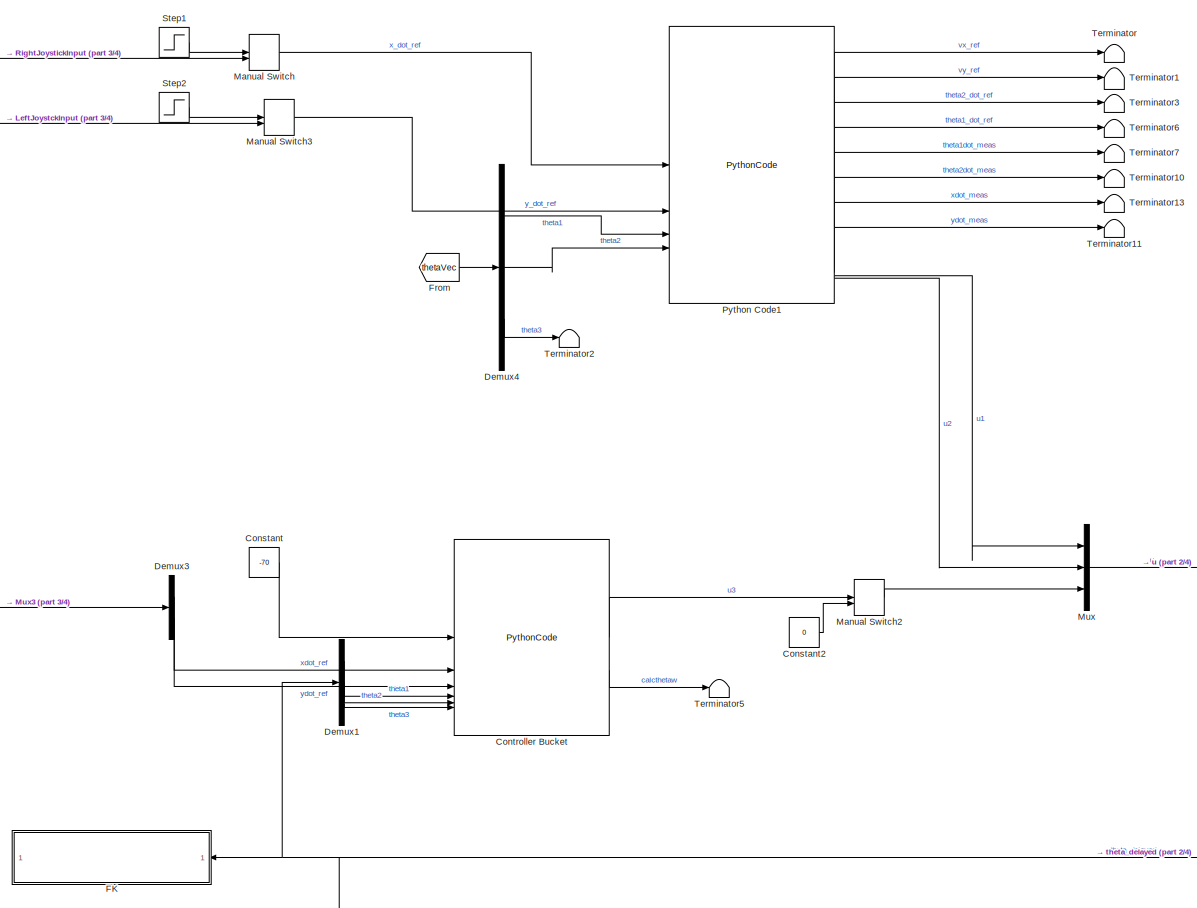
[diagram: root canvas - part 1/4, center side, full height]
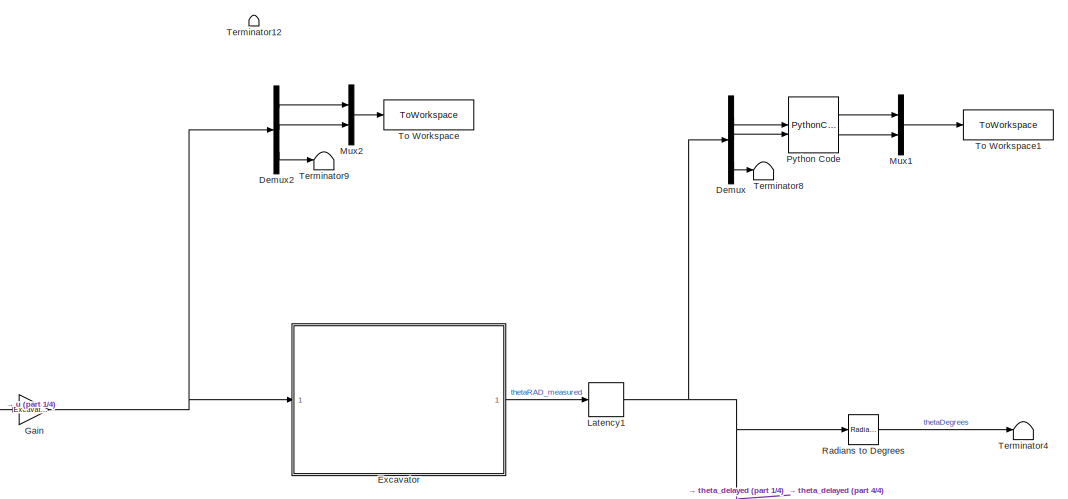
[diagram: root canvas - part 2/4, middle right region]
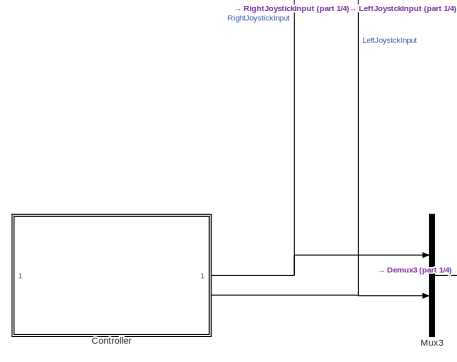
[diagram: root canvas - part 3/4, middle left region]
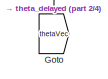
[diagram: root canvas - part 4/4, bottom left region]
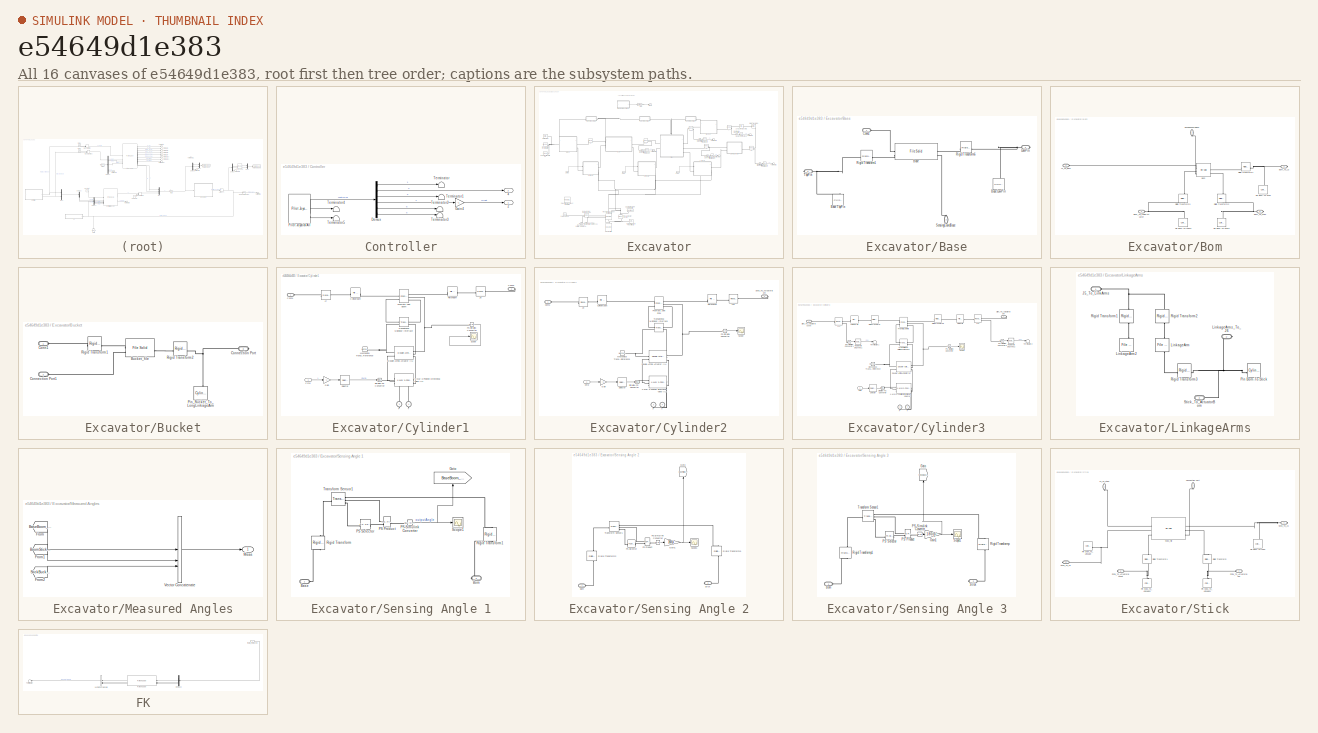
[diagram: thumbnail index - all 16 canvases of the model, root first then tree order]
MODEL slx_e54649d1e383
KIND model
CONFIG AbsTol = auto
CONFIG EnableMultiTasking = off
CONFIG FixedStep = auto
CONFIG MaxStep = auto
CONFIG MinStep = auto
CONFIG RelTol = 1e-2
CONFIG SampleTimeConstraint = Unconstrained
CONFIG SolverName = ode15s
CONFIG StartTime = 0.0
CONFIG StopTime = inf
WORKSPACE source: MATLAB code (in-file)
WORKSPACE Ts = 1e-2  (= 0.01)
WORKSPACE xdot_ref = 0.1
WORKSPACE ydot_ref = 0
WORKSPACE thetadot_ref = 0
WORKSPACE bomWeight = 350
WORKSPACE stickWeight = 200
WORKSPACE bucketWeight = 100
WORKSPACE cylinderOneDamping = 1000
WORKSPACE cylinderOnePistonCrossSectionalAreaChamberA = 0.1403
WORKSPACE cylinderOnePistonCrossSectionalAreaChamberB = 0.17443
WORKSPACE cylinderOnePistonStroke = 529.98
WORKSPACE cylinderOneDeadVolumeChamberA = 0.04316
WORKSPACE cylinderOneDeadVolumeChamberB = 0.054177
WORKSPACE cylinderTwoDamping = 1000
WORKSPACE cylinderTwoPistonCrossSectionalAreaChamberA = 0.18189
WORKSPACE cylinderTwoPistonCrossSectionalAreaChamberB = 0.1784
WORKSPACE cylinderTwoPistonStroke = 652.71
WORKSPACE cylinderTwoDeadVolumeChamberA = 0.036781
WORKSPACE cylinderTwoDeadVolumeChamberB = 0.054436
WORKSPACE inputDelay = 2
WORKSPACE pumpDisplacement = 0.00013254
WORKSPACE pumpNominalShaftAngularVelocity = 116.48
WORKSPACE pumpNominalPressureGain = 4.2749
BLOCK [Constant] Constant
  SampleTime = 0.01
  Value = -70
BLOCK [Constant] Constant2
  Value = 0
BLOCK [SubSystem] Controller
BLOCK [PythonCode] Controller Bucket
  OutputCode = import numpy as np\n\n\n#### TUNING PARAMETERS\n\nTs = 0.01\n\n## Bucket Control Parameters\nKp_bucket = 30\nKi_bucket = 3\nKd_bucket = 1\n\n\n## Bucket controller\ncalc_thetaw = theta1 + theta2 + theta3\n\nbucket_error = theta_ref - calc_thetaw\n\nif bucket_error_prev is None:\n    bucket_error_prev = bucket_error\nif bucket_error_integral_prev is None:\n    bucket_error_integral_prev  = 0\n\n# calculate integral\nbucke...<+414ch>
  SampleTime = 0.01
  bucket_error_integral_prev = 0
BLOCK [Outport] Controller/2
  IconDisplay = Signal name
BLOCK [Outport] Controller/4
  IconDisplay = Signal name
  Port = 2
BLOCK [Demux] Controller/Demux
  Outputs = 6
BLOCK [Gain] Controller/Gain4
  Gain = -1
BLOCK [Reference] Controller/Pilot Joystick All  REF=aerolibanimutils/Pilot Joystick
  LibrarySourceBlock = aerolibanimutils/Pilot Joystick All
  SourceBlock = aerolibanimutils/Pilot Joystick
  SourceType = PilotJoystick
BLOCK [Terminator] Controller/Terminator
BLOCK [Terminator] Controller/Terminator1
BLOCK [Terminator] Controller/Terminator2
BLOCK [Terminator] Controller/Terminator3
BLOCK [Terminator] Controller/Terminator4
BLOCK [Terminator] Controller/Terminator5
BLOCK [Demux] Demux
  Outputs = 3
BLOCK [Demux] Demux1
  Outputs = 3
BLOCK [Demux] Demux2
  Outputs = 3
BLOCK [Demux] Demux3
  Outputs = 2
BLOCK [Demux] Demux4
  Outputs = 3
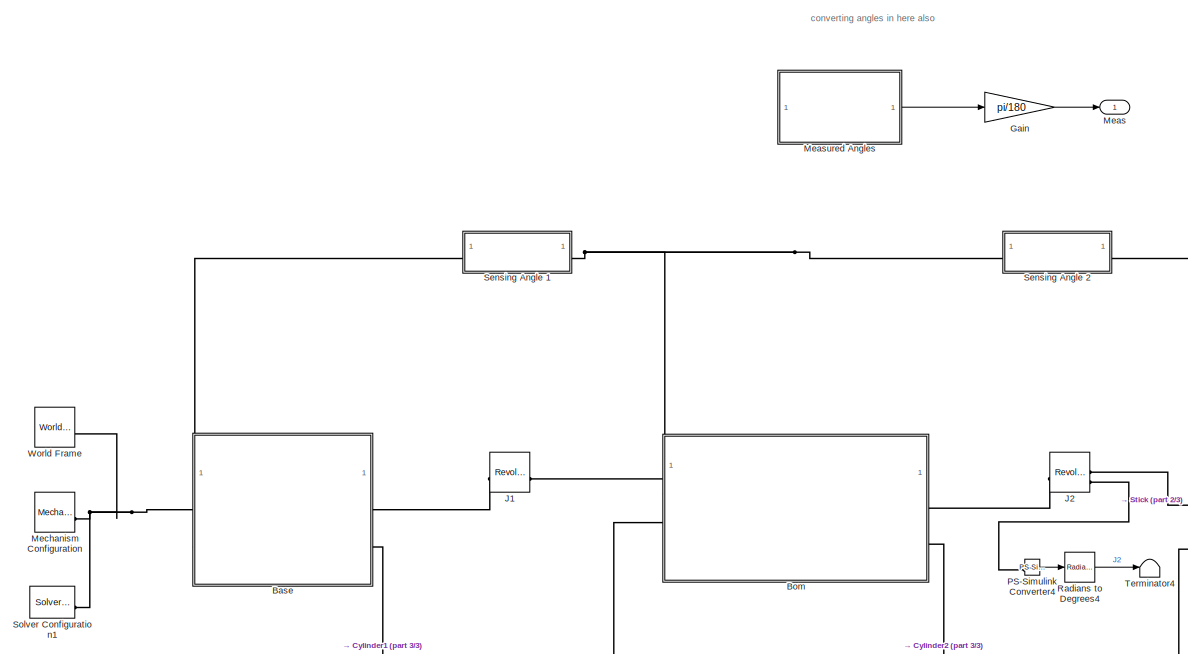
[diagram: Excavator - part 1/3, top left region]
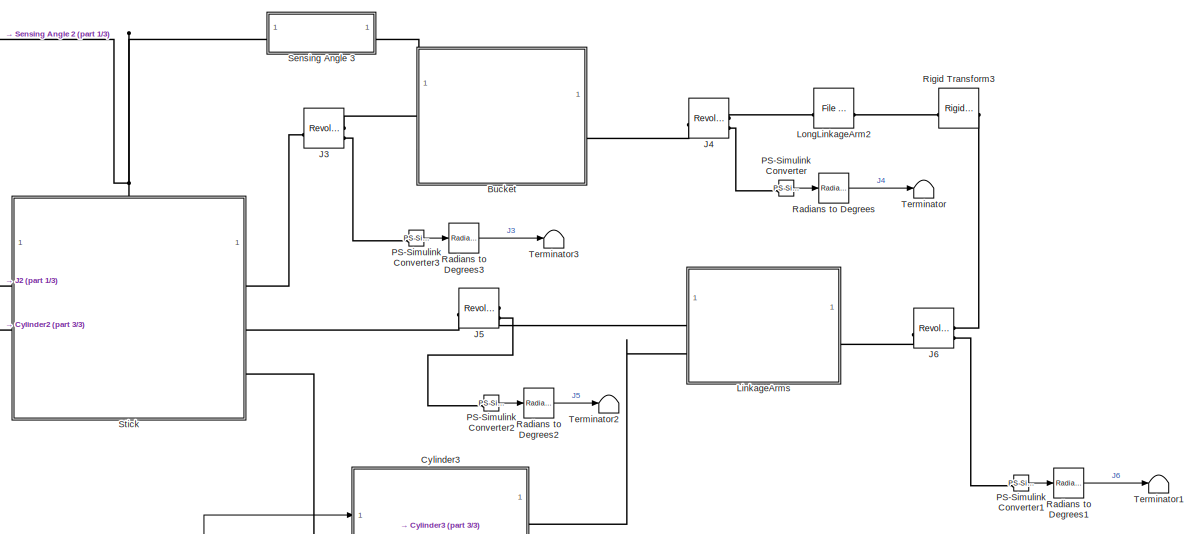
[diagram: Excavator - part 2/3, middle right region]
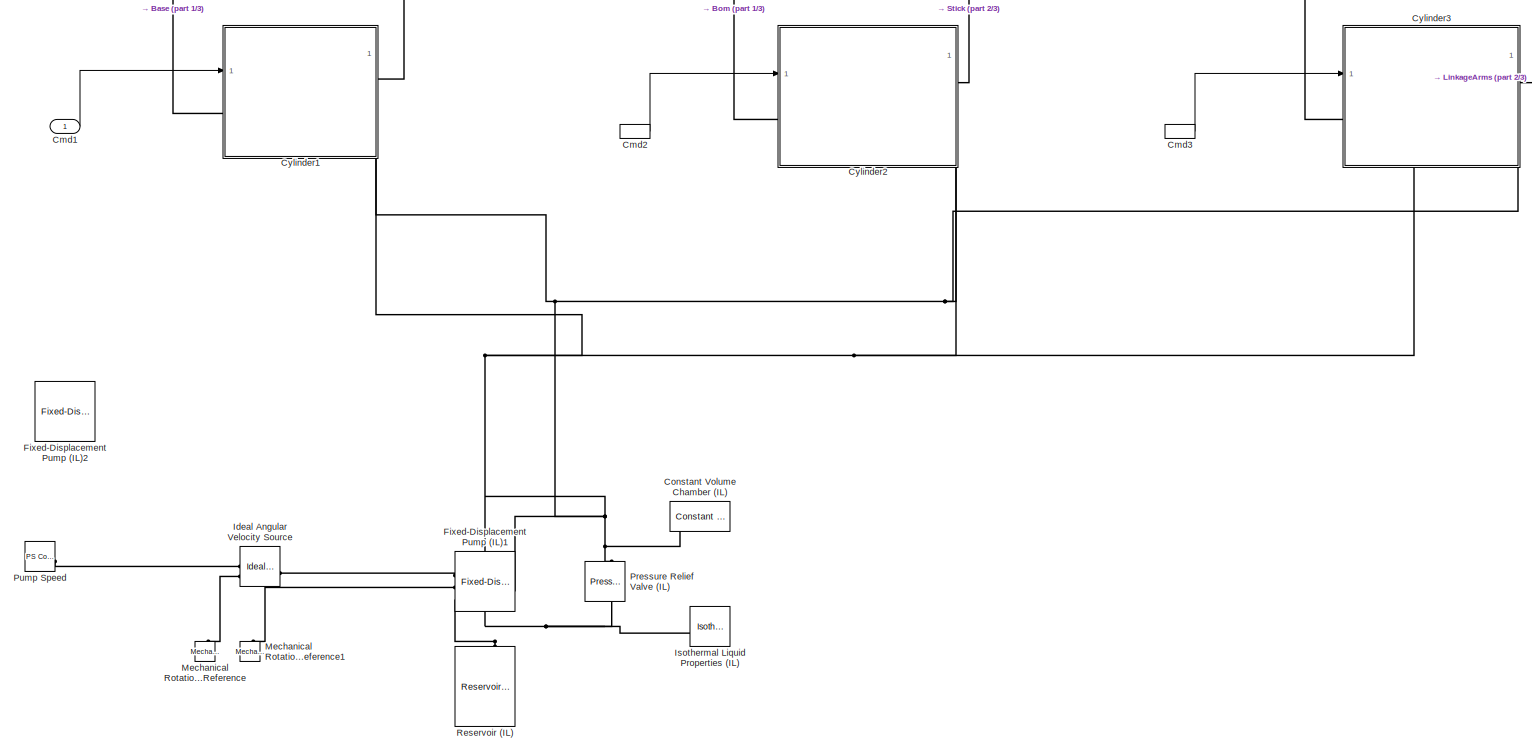
[diagram: Excavator - part 3/3, bottom center region]
BLOCK [SubSystem] Excavator
BLOCK [SubSystem] Excavator/Base
  PortSchema = {"entries":[{"content":{"sides":[{"content":{"connectorIds":["LConn1"]},"type":"ConnectorPlacement.EquallySpacedRectSide","uuid":"40ecd481-0f87-4ac6-81e7-411d2e7a87dc"},{"content":{"connectorIds":["RConn1","RConn2"],"side":"RIGHT"},"type":"ConnectorPlacement.EquallySpacedRectSide","uuid":"4ae56660-704d-4a11-a2e7-42dc450a906f"},{"content":{"connectorIds":["LConn2"],"side":"TOP"},"type":"ConnectorPl...<+262ch>
BLOCK [Reference] Excavator/Base/Base  REF=sm_lib/Body Elements/File Solid
  SourceBlock = sm_lib/Body Elements/File Solid
  SourceType = File Solid
BLOCK [Reference] Excavator/Base/Base LowPin  REF=sm_lib/Body Elements/Cylindrical Solid
  NameLocation = left
  SourceBlock = sm_lib/Body Elements/Cylindrical Solid
  SourceType = Cylindrical Solid
BLOCK [Reference] Excavator/Base/Base TopPin  REF=sm_lib/Body Elements/Cylindrical Solid
  NameLocation = left
  SourceBlock = sm_lib/Body Elements/Cylindrical Solid
  SourceType = Cylindrical Solid
BLOCK [PMIOPort] Excavator/Base/Conn1
  Side = Left
BLOCK [PMIOPort] Excavator/Base/LowPin
  NameLocation = top
  Port = 4
  Side = Right
BLOCK [Reference] Excavator/Base/Rigid Transform1  REF=sm_lib/Frames and
Transforms/Rigid
Transform
  SourceBlock = sm_lib/Frames and\nTransforms/Rigid\nTransform
  SourceType = Rigid\nTransform
BLOCK [Reference] Excavator/Base/Rigid Transform6  REF=sm_lib/Frames and
Transforms/Rigid
Transform
  SourceBlock = sm_lib/Frames and\nTransforms/Rigid\nTransform
  SourceType = Rigid\nTransform
BLOCK [PMIOPort] Excavator/Base/SensingCoordBase
  NameLocation = right
  Port = 2
  Side = Left
BLOCK [PMIOPort] Excavator/Base/TopPin
  NameLocation = top
  Port = 3
  Side = Right
BLOCK [SubSystem] Excavator/Bom
  PortSchema = {"entries":[{"content":{"sides":[{"content":{"connectorIds":["LConn1","LConn2"]},"type":"ConnectorPlacement.EquallySpacedRectSide","uuid":"7ad98941-c155-4b77-821c-441aa02f495c"},{"content":{"connectorIds":["RConn1","RConn2"],"side":"RIGHT"},"type":"ConnectorPlacement.EquallySpacedRectSide","uuid":"f5fb3b40-b535-47bd-a749-2c1f436a2cdb"},{"content":{"connectorIds":["LConn3"],"side":"TOP"},"type":"Co...<+271ch>
BLOCK [Reference] Excavator/Bom/Bom  REF=sm_lib/Body Elements/File Solid
  SourceBlock = sm_lib/Body Elements/File Solid
  SourceType = File Solid
BLOCK [PMIOPort] Excavator/Bom/Bom_To_J2
  NameLocation = top
  Port = 4
  Side = Right
BLOCK [PMIOPort] Excavator/Bom/Bom_To_LowerActuator
  Port = 2
  Side = Left
BLOCK [PMIOPort] Excavator/Bom/Bom_To_Stick
  Port = 5
  Side = Right
BLOCK [PMIOPort] Excavator/Bom/J1_To_Bom
  Side = Left
BLOCK [Reference] Excavator/Bom/Pin Bom-To-Stick  REF=sm_lib/Body Elements/Cylindrical Solid
  NameLocation = right
  SourceBlock = sm_lib/Body Elements/Cylindrical Solid
  SourceType = Cylindrical Solid
BLOCK [Reference] Excavator/Bom/Pin Bom-To-Stick1  REF=sm_lib/Body Elements/Cylindrical Solid
  NameLocation = right
  SourceBlock = sm_lib/Body Elements/Cylindrical Solid
  SourceType = Cylindrical Solid
BLOCK [Reference] Excavator/Bom/Pin Bom-To-Stick2  REF=sm_lib/Body Elements/Cylindrical Solid
  NameLocation = right
  SourceBlock = sm_lib/Body Elements/Cylindrical Solid
  SourceType = Cylindrical Solid
BLOCK [Reference] Excavator/Bom/Rigid Transform1  REF=sm_lib/Frames and
Transforms/Rigid
Transform
  SourceBlock = sm_lib/Frames and\nTransforms/Rigid\nTransform
  SourceType = Rigid\nTransform
BLOCK [Reference] Excavator/Bom/Rigid Transform2  REF=sm_lib/Frames and
Transforms/Rigid
Transform
  NameLocation = top
  SourceBlock = sm_lib/Frames and\nTransforms/Rigid\nTransform
  SourceType = Rigid\nTransform
BLOCK [Reference] Excavator/Bom/Rigid Transform3  REF=sm_lib/Frames and
Transforms/Rigid
Transform
  NameLocation = left
  SourceBlock = sm_lib/Frames and\nTransforms/Rigid\nTransform
  SourceType = Rigid\nTransform
BLOCK [PMIOPort] Excavator/Bom/SensingCoordBom
  NameLocation = left
  Port = 3
  Side = Left
BLOCK [SubSystem] Excavator/Bucket
  PortSchema = {"entries":[{"content":{"sides":[{"content":{"connectorIds":["LConn1"]},"type":"ConnectorPlacement.EquallySpacedRectSide","uuid":"5de28302-4101-44f3-9c23-279c450fdd15"},{"content":{"connectorIds":["RConn1"],"side":"RIGHT"},"type":"ConnectorPlacement.EquallySpacedRectSide","uuid":"b0db8830-510e-47ef-9140-b2643c0c8376"},{"content":{"connectorIds":["LConn2"],"side":"TOP"},"type":"ConnectorPlacement.E...<+253ch>
BLOCK [Reference] Excavator/Bucket/Bucket_file  REF=sm_lib/Body Elements/File Solid
  SourceBlock = sm_lib/Body Elements/File Solid
  SourceType = File Solid
BLOCK [PMIOPort] Excavator/Bucket/Conn1
  Side = Left
BLOCK [PMIOPort] Excavator/Bucket/Connection Port
  NameLocation = top
  Port = 3
  Side = Right
BLOCK [PMIOPort] Excavator/Bucket/Connection Port1
  Port = 2
  Side = Left
BLOCK [Reference] Excavator/Bucket/Pin_Bucket_To_LongLinkageArm  REF=sm_lib/Body Elements/Cylindrical Solid
  NameLocation = right
  SourceBlock = sm_lib/Body Elements/Cylindrical Solid
  SourceType = Cylindrical Solid
BLOCK [Reference] Excavator/Bucket/Rigid Transform1  REF=sm_lib/Frames and
Transforms/Rigid
Transform
  SourceBlock = sm_lib/Frames and\nTransforms/Rigid\nTransform
  SourceType = Rigid\nTransform
BLOCK [Reference] Excavator/Bucket/Rigid Transform2  REF=sm_lib/Frames and
Transforms/Rigid
Transform
  SourceBlock = sm_lib/Frames and\nTransforms/Rigid\nTransform
  SourceType = Rigid\nTransform
BLOCK [Inport] Excavator/Cmd1
BLOCK [InportShadow] Excavator/Cmd2
BLOCK [InportShadow] Excavator/Cmd3
BLOCK [Reference] Excavator/Constant Volume Chamber (IL)  REF=fl_lib/Isothermal Liquid/Elements/Constant Volume
Chamber (IL)
  NameLocation = top
  SourceBlock = fl_lib/Isothermal Liquid/Elements/Constant Volume\nChamber (IL)
  SourceType = Constant Volume\nChamber (IL)
BLOCK [SubSystem] Excavator/Cylinder1
  PortSchema = {"entries":[{"content":{"sides":[{"content":{"connectorIds":["LConn1","In1"]},"type":"ConnectorPlacement.EquallySpacedRectSide","uuid":"958c3393-df8d-4c6f-89df-92ae8f6a338c"},{"content":{"connectorIds":["RConn1"],"side":"RIGHT"},"type":"ConnectorPlacement.EquallySpacedRectSide","uuid":"7fbd6d33-fc32-41eb-a764-fc12f800bd43"},{"content":{"side":"TOP"},"type":"ConnectorPlacement.EquallySpacedRectSide...<+394ch>
BLOCK [Reference] Excavator/Cylinder1/4-Way 3-Position Directional Valve (IL)  REF=SimscapeFluids_lib/Isothermal Liquid/Valves & Orifices/Directional Control
Valves/4-Way 3-Position
Directional Valve
(IL)
  SourceBlock = SimscapeFluids_lib/Isothermal Liquid/Valves & Orifices/Directional Control\nValves/4-Way 3-Position\nDirectional Valve\n(IL)
  SourceType = 4-Way 3-Position\nDirectional Valve\n(IL)
BLOCK [Inport] Excavator/Cylinder1/Cmd
BLOCK [PMIOPort] Excavator/Cylinder1/Conn1
  Side = Left
BLOCK [PMIOPort] Excavator/Cylinder1/Conn2
  Port = 2
  Side = Right
BLOCK [Reference] Excavator/Cylinder1/CylinderBom  REF=sm_lib/Body Elements/File Solid
  SourceBlock = sm_lib/Body Elements/File Solid
  SourceType = File Solid
BLOCK [Reference] Excavator/Cylinder1/Double-Acting Actuator (IL)  REF=SimscapeFluids_lib/Isothermal Liquid/Actuators/Double-Acting
Actuator (IL)
  SourceBlock = SimscapeFluids_lib/Isothermal Liquid/Actuators/Double-Acting\nActuator (IL)
  SourceType = Double-Acting\nActuator (IL)
BLOCK [Gain] Excavator/Cylinder1/Gain
  Gain = -1
BLOCK [Reference] Excavator/Cylinder1/J7  REF=sm_lib/Joints/Revolute Joint
  SourceBlock = sm_lib/Joints/Revolute Joint
  SourceType = Revolute Joint
BLOCK [Reference] Excavator/Cylinder1/J8  REF=sm_lib/Joints/Revolute Joint
  NameLocation = top
  SourceBlock = sm_lib/Joints/Revolute Joint
  SourceType = Revolute Joint
BLOCK [Reference] Excavator/Cylinder1/Mechanical Translational Reference  REF=fl_lib/Mechanical/Translational
Elements/Mechanical
Translational
Reference
  SourceBlock = fl_lib/Mechanical/Translational\nElements/Mechanical\nTranslational\nReference
  SourceType = Mechanical\nTranslational\nReference
BLOCK [PMIOPort] Excavator/Cylinder1/P
  NameLocation = left
  Port = 3
  Side = Right
BLOCK [Reference] Excavator/Cylinder1/PS-Simulink Converter  REF=nesl_utility/PS-Simulink
Converter
  SourceBlock = nesl_utility/PS-Simulink\nConverter
  SourceType = PS-Simulink\nConverter
BLOCK [Reference] Excavator/Cylinder1/PistonBom  REF=sm_lib/Body Elements/File Solid
  SourceBlock = sm_lib/Body Elements/File Solid
  SourceType = File Solid
BLOCK [Reference] Excavator/Cylinder1/Prismatic Joint Boom  REF=sm_lib/Joints/Prismatic
Joint
  SourceBlock = sm_lib/Joints/Prismatic\nJoint
  SourceType = Prismatic\nJoint
BLOCK [Scope] Excavator/Cylinder1/Scope
  ActiveDisplayYMaximum = 359.18073353927531
  ActiveDisplayYMinimum = 347.03634889726743
  Floating = off
  GraphicalSettings = {"AxesScalingProperties":{"AlignXAxis":"Center","AlignYAxis":"Center","AutoScaleXAxisLimits":false,"AxesScaling":"Manual","AxesScalingNumUpdates":10,"ExpandOnly":true,"ScaleAxesLimitsAtStop":false,"XAxisDataRange":100,"YAxisDataRange":80},"DisplayProperties":{"ColorOrder":["auto","auto","auto","auto","auto","auto","auto","auto","auto","auto","auto","auto","auto","auto","auto","auto","auto","auto",...<+2058ch>
  MultipleDisplayCache = [{"MaxYLimMag":402.47125340971263,"MaxYLimReal":359.18073353927531,"MinYLimMag":377.75871931258717,"MinYLimReal":347.03634889726743,"PlotAsMagnitudePhase":false,"ShowGrid":true,"ShowLegend":false,"Title":"%<SignalLabel>","YLabel":""}]
  NumInputPorts = 1
  ScopeFrameLocation = window
  WasSavedAsWebScope = on
  WindowPosition = [2000.000000,308.000000,561.000000,420.000000,]
BLOCK [Selector] Excavator/Cylinder1/Selector
  IndexOptions = Index vector (dialog)
  Indices = 1
  InputPortWidth = 3
  OutputSizes = 1
BLOCK [Reference] Excavator/Cylinder1/Simulink-PS Converter  REF=nesl_utility/Simulink-PS
Converter
  NameLocation = right
  SourceBlock = nesl_utility/Simulink-PS\nConverter
  SourceType = Simulink-PS\nConverter
BLOCK [PMIOPort] Excavator/Cylinder1/T
  NameLocation = right
  Port = 4
  Side = Right
BLOCK [Reference] Excavator/Cylinder1/Translational Multibody Interface  REF=fl_lib/Mechanical/Multibody Interfaces/Translational
Multibody Interface
  SourceBlock = fl_lib/Mechanical/Multibody Interfaces/Translational\nMultibody Interface
  SourceType = Translational\nMultibody Interface
BLOCK [SubSystem] Excavator/Cylinder2
  PortSchema = {"entries":[{"content":{"sides":[{"content":{"connectorIds":["LConn1","In1"]},"type":"ConnectorPlacement.EquallySpacedRectSide","uuid":"57f8ce67-ce53-4554-827a-ade4073837f1"},{"content":{"connectorIds":["RConn1"],"side":"RIGHT"},"type":"ConnectorPlacement.EquallySpacedRectSide","uuid":"2d7b50e6-8862-4672-bf86-700cfda39af2"},{"content":{"side":"TOP"},"type":"ConnectorPlacement.EquallySpacedRectSide...<+394ch>
BLOCK [Reference] Excavator/Cylinder2/4-Way 3-Position Directional Valve (IL)  REF=SimscapeFluids_lib/Isothermal Liquid/Valves & Orifices/Directional Control
Valves/4-Way 3-Position
Directional Valve
(IL)
  SourceBlock = SimscapeFluids_lib/Isothermal Liquid/Valves & Orifices/Directional Control\nValves/4-Way 3-Position\nDirectional Valve\n(IL)
  SourceType = 4-Way 3-Position\nDirectional Valve\n(IL)
BLOCK [Inport] Excavator/Cylinder2/Cmd
BLOCK [PMIOPort] Excavator/Cylinder2/Conn1
  Side = Left
BLOCK [Reference] Excavator/Cylinder2/CylinderStick  REF=sm_lib/Body Elements/File Solid
  SourceBlock = sm_lib/Body Elements/File Solid
  SourceType = File Solid
BLOCK [Reference] Excavator/Cylinder2/Double-Acting Actuator (IL)  REF=SimscapeFluids_lib/Isothermal Liquid/Actuators/Double-Acting
Actuator (IL)
  SourceBlock = SimscapeFluids_lib/Isothermal Liquid/Actuators/Double-Acting\nActuator (IL)
  SourceType = Double-Acting\nActuator (IL)
BLOCK [Gain] Excavator/Cylinder2/Gain
  Gain = -1
BLOCK [Reference] Excavator/Cylinder2/J10  REF=sm_lib/Joints/Revolute Joint
  NameLocation = top
  SourceBlock = sm_lib/Joints/Revolute Joint
  SourceType = Revolute Joint
BLOCK [Reference] Excavator/Cylinder2/J9  REF=sm_lib/Joints/Revolute Joint
  SourceBlock = sm_lib/Joints/Revolute Joint
  SourceType = Revolute Joint
BLOCK [Reference] Excavator/Cylinder2/Mechanical Translational Reference  REF=fl_lib/Mechanical/Translational
Elements/Mechanical
Translational
Reference
  SourceBlock = fl_lib/Mechanical/Translational\nElements/Mechanical\nTranslational\nReference
  SourceType = Mechanical\nTranslational\nReference
BLOCK [PMIOPort] Excavator/Cylinder2/P
  NameLocation = left
  Port = 3
  Side = Right
BLOCK [Reference] Excavator/Cylinder2/PS-Simulink Converter  REF=nesl_utility/PS-Simulink
Converter
  SourceBlock = nesl_utility/PS-Simulink\nConverter
  SourceType = PS-Simulink\nConverter
BLOCK [Reference] Excavator/Cylinder2/PistonStick  REF=sm_lib/Body Elements/File Solid
  SourceBlock = sm_lib/Body Elements/File Solid
  SourceType = File Solid
BLOCK [Reference] Excavator/Cylinder2/Prismatic Joint Stick  REF=sm_lib/Joints/Prismatic
Joint
  SourceBlock = sm_lib/Joints/Prismatic\nJoint
  SourceType = Prismatic\nJoint
BLOCK [Scope] Excavator/Cylinder2/Scope
  ActiveDisplayYMaximum = 547.50499851352947
  ActiveDisplayYMinimum = 72.472682118878936
  DataLoggingVariableName = ScopeData5
  Floating = off
  GraphicalSettings = {"Style":{"BackgroundColor":[0.12941176470588237,0.12941176470588237,0.12941176470588237],"AxesColor":[0.07058823529411765,0.07058823529411765,0.07058823529411765],"LabelsColor":[0.8509803921568627,0.8509803921568627,0.8509803921568627],"PreserveColors":false,"Visible":[true],"LineStyle":["-"],"LineWidth":[1.5],"BarWidth":[0.9],"LineColor":["auto"],"LineFaceAlpha":[1],"LineEdgeAlpha":[1],"Marker":...<+2051ch>
  MultipleDisplayCache = [{"MaxYLimMag":547.50499851352947,"MaxYLimReal":547.50499851352947,"MinYLimMag":72.472682118878936,"MinYLimReal":72.472682118878936,"PlotAsMagnitudePhase":false,"ShowGrid":true,"ShowLegend":false,"Title":"%<SignalLabel>","YLabel":""}]
  NumInputPorts = 1
  ScopeFrameLocation = window
  WasSavedAsWebScope = on
  WindowPosition = [1675.000000,486.000000,560.000000,420.000000,]
BLOCK [Selector] Excavator/Cylinder2/Selector
  IndexOptions = Index vector (dialog)
  Indices = 2
  InputPortWidth = 3
  OutputSizes = 1
BLOCK [Reference] Excavator/Cylinder2/Simulink-PS Converter  REF=nesl_utility/Simulink-PS
Converter
  SourceBlock = nesl_utility/Simulink-PS\nConverter
  SourceType = Simulink-PS\nConverter
BLOCK [PMIOPort] Excavator/Cylinder2/Stick_To_ActuatorBom
  Port = 2
  Side = Right
BLOCK [PMIOPort] Excavator/Cylinder2/T
  NameLocation = right
  Port = 4
  Side = Right
BLOCK [Reference] Excavator/Cylinder2/Translational Multibody Interface  REF=fl_lib/Mechanical/Multibody Interfaces/Translational
Multibody Interface
  SourceBlock = fl_lib/Mechanical/Multibody Interfaces/Translational\nMultibody Interface
  SourceType = Translational\nMultibody Interface
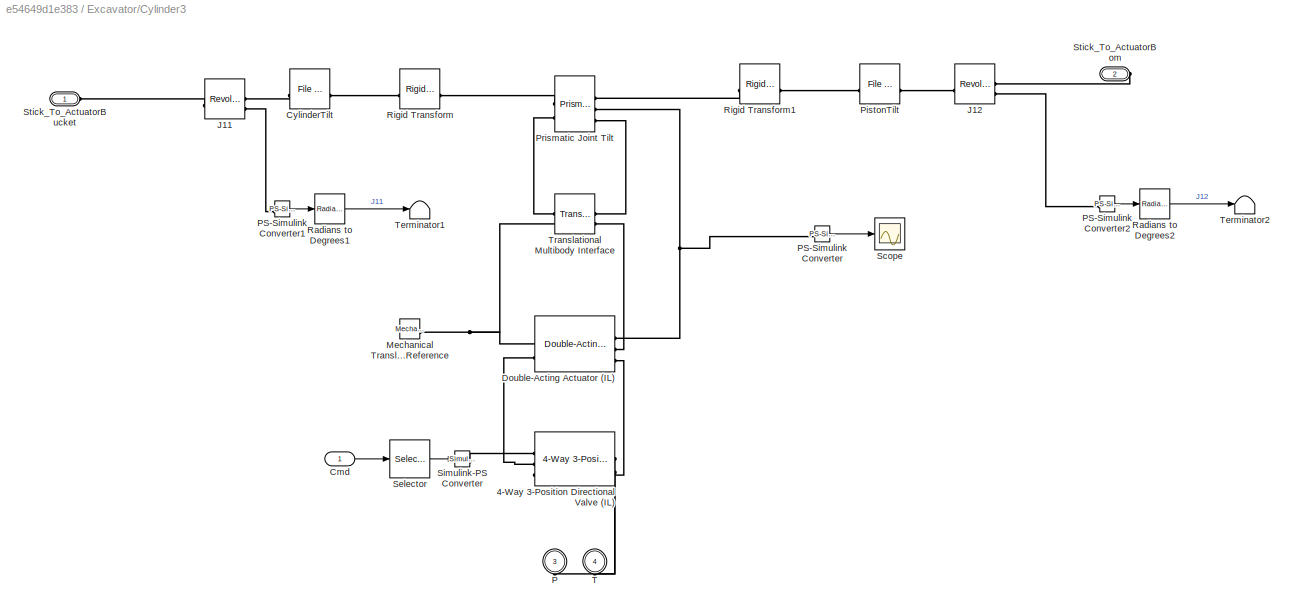
BLOCK [SubSystem] Excavator/Cylinder3
  PortSchema = {"entries":[{"content":{"sides":[{"content":{"connectorIds":["LConn1","In1"]},"type":"ConnectorPlacement.EquallySpacedRectSide","uuid":"57f8ce67-ce53-4554-827a-ade4073837f1"},{"content":{"connectorIds":["RConn1"],"side":"RIGHT"},"type":"ConnectorPlacement.EquallySpacedRectSide","uuid":"2d7b50e6-8862-4672-bf86-700cfda39af2"},{"content":{"side":"TOP"},"type":"ConnectorPlacement.EquallySpacedRectSide...<+394ch>
BLOCK [Reference] Excavator/Cylinder3/4-Way 3-Position Directional Valve (IL)  REF=SimscapeFluids_lib/Isothermal Liquid/Valves & Orifices/Directional Control
Valves/4-Way 3-Position
Directional Valve
(IL)
  SourceBlock = SimscapeFluids_lib/Isothermal Liquid/Valves & Orifices/Directional Control\nValves/4-Way 3-Position\nDirectional Valve\n(IL)
  SourceType = 4-Way 3-Position\nDirectional Valve\n(IL)
BLOCK [Inport] Excavator/Cylinder3/Cmd
BLOCK [Reference] Excavator/Cylinder3/CylinderTilt  REF=sm_lib/Body Elements/File Solid
  SourceBlock = sm_lib/Body Elements/File Solid
  SourceType = File Solid
BLOCK [Reference] Excavator/Cylinder3/Double-Acting Actuator (IL)  REF=SimscapeFluids_lib/Isothermal Liquid/Actuators/Double-Acting
Actuator (IL)
  SourceBlock = SimscapeFluids_lib/Isothermal Liquid/Actuators/Double-Acting\nActuator (IL)
  SourceType = Double-Acting\nActuator (IL)
BLOCK [Reference] Excavator/Cylinder3/J11  REF=sm_lib/Joints/Revolute Joint
  SourceBlock = sm_lib/Joints/Revolute Joint
  SourceType = Revolute Joint
BLOCK [Reference] Excavator/Cylinder3/J12  REF=sm_lib/Joints/Revolute Joint
  NameLocation = top
  SourceBlock = sm_lib/Joints/Revolute Joint
  SourceType = Revolute Joint
BLOCK [Reference] Excavator/Cylinder3/Mechanical Translational Reference  REF=fl_lib/Mechanical/Translational
Elements/Mechanical
Translational
Reference
  SourceBlock = fl_lib/Mechanical/Translational\nElements/Mechanical\nTranslational\nReference
  SourceType = Mechanical\nTranslational\nReference
BLOCK [PMIOPort] Excavator/Cylinder3/P
  NameLocation = left
  Port = 3
  Side = Right
BLOCK [Reference] Excavator/Cylinder3/PS-Simulink Converter  REF=nesl_utility/PS-Simulink
Converter
  SourceBlock = nesl_utility/PS-Simulink\nConverter
  SourceType = PS-Simulink\nConverter
BLOCK [Reference] Excavator/Cylinder3/PS-Simulink Converter1  REF=nesl_utility/PS-Simulink
Converter
  NameLocation = top
  SourceBlock = nesl_utility/PS-Simulink\nConverter
  SourceType = PS-Simulink\nConverter
BLOCK [Reference] Excavator/Cylinder3/PS-Simulink Converter2  REF=nesl_utility/PS-Simulink
Converter
  NameLocation = top
  SourceBlock = nesl_utility/PS-Simulink\nConverter
  SourceType = PS-Simulink\nConverter
BLOCK [Reference] Excavator/Cylinder3/PistonTilt  REF=sm_lib/Body Elements/File Solid
  SourceBlock = sm_lib/Body Elements/File Solid
  SourceType = File Solid
BLOCK [Reference] Excavator/Cylinder3/Prismatic Joint Tilt  REF=sm_lib/Joints/Prismatic
Joint
  SourceBlock = sm_lib/Joints/Prismatic\nJoint
  SourceType = Prismatic\nJoint
BLOCK [Reference] Excavator/Cylinder3/Radians to Degrees1  REF=simulink_extras/Transformations/Radians
to Degrees
  SourceBlock = simulink_extras/Transformations/Radians\nto Degrees
  SourceType = RadiansToDegrees
BLOCK [Reference] Excavator/Cylinder3/Radians to Degrees2  REF=simulink_extras/Transformations/Radians
to Degrees
  SourceBlock = simulink_extras/Transformations/Radians\nto Degrees
  SourceType = RadiansToDegrees
BLOCK [Reference] Excavator/Cylinder3/Rigid Transform  REF=sm_lib/Frames and
Transforms/Rigid
Transform
  SourceBlock = sm_lib/Frames and\nTransforms/Rigid\nTransform
  SourceType = Rigid\nTransform
BLOCK [Reference] Excavator/Cylinder3/Rigid Transform1  REF=sm_lib/Frames and
Transforms/Rigid
Transform
  SourceBlock = sm_lib/Frames and\nTransforms/Rigid\nTransform
  SourceType = Rigid\nTransform
BLOCK [Scope] Excavator/Cylinder3/Scope
  ActiveDisplayYMaximum = 524.4953783983201
  ActiveDisplayYMinimum = 523.046631858249
  DataLoggingVariableName = ScopeData6
  Floating = off
  GraphicalSettings = {"Style":{"BackgroundColor":[0.12941176470588237,0.12941176470588237,0.12941176470588237],"AxesColor":[0.07058823529411765,0.07058823529411765,0.07058823529411765],"LabelsColor":[0.8509803921568627,0.8509803921568627,0.8509803921568627],"PreserveColors":false,"Visible":[true],"LineStyle":["-"],"LineWidth":[1.5],"BarWidth":[0.9],"LineColor":["auto"],"LineFaceAlpha":[1],"LineEdgeAlpha":[1],"Marker":...<+2049ch>
  MultipleDisplayCache = [{"MaxYLimMag":552.02156265967039,"MaxYLimReal":524.4953783983201,"MinYLimMag":271.9969657956832,"MinYLimReal":523.046631858249,"PlotAsMagnitudePhase":false,"ShowGrid":true,"ShowLegend":false,"Title":"%<SignalLabel>","YLabel":""}]
  NumInputPorts = 1
  ScopeFrameLocation = window
  WasSavedAsWebScope = on
  WindowPosition = [769.000000,462.000000,560.000000,420.000000,]
BLOCK [Selector] Excavator/Cylinder3/Selector
  IndexOptions = Index vector (dialog)
  Indices = 3
  InputPortWidth = 3
  OutputSizes = 1
BLOCK [Reference] Excavator/Cylinder3/Simulink-PS Converter  REF=nesl_utility/Simulink-PS
Converter
  SourceBlock = nesl_utility/Simulink-PS\nConverter
  SourceType = Simulink-PS\nConverter
BLOCK [PMIOPort] Excavator/Cylinder3/Stick_To_ActuatorBom
  Port = 2
  Side = Right
BLOCK [PMIOPort] Excavator/Cylinder3/Stick_To_ActuatorBucket
  Side = Left
BLOCK [PMIOPort] Excavator/Cylinder3/T
  NameLocation = right
  Port = 4
  Side = Right
BLOCK [Terminator] Excavator/Cylinder3/Terminator1
BLOCK [Terminator] Excavator/Cylinder3/Terminator2
BLOCK [Reference] Excavator/Cylinder3/Translational Multibody Interface  REF=fl_lib/Mechanical/Multibody Interfaces/Translational
Multibody Interface
  SourceBlock = fl_lib/Mechanical/Multibody Interfaces/Translational\nMultibody Interface
  SourceType = Translational\nMultibody Interface
BLOCK [Reference] Excavator/Fixed-Displacement Pump (IL)1  REF=SimscapeFluids_lib/Isothermal Liquid/Pumps & Motors/Fixed-Displacement
Pump (IL)
  SourceBlock = SimscapeFluids_lib/Isothermal Liquid/Pumps & Motors/Fixed-Displacement\nPump (IL)
  SourceType = Fixed-Displacement\nPump (IL)
BLOCK [Reference] Excavator/Fixed-Displacement Pump (IL)2  REF=SimscapeFluids_lib/Isothermal Liquid/Pumps & Motors/Fixed-Displacement
Pump (IL)
  AttributesFormatString = Eaton:PVM:018
  Commented = on
  SourceBlock = SimscapeFluids_lib/Isothermal Liquid/Pumps & Motors/Fixed-Displacement\nPump (IL)
  SourceType = Fixed-Displacement\nPump (IL)
BLOCK [Gain] Excavator/Gain
  Gain = pi/180
BLOCK [Reference] Excavator/Ideal Angular Velocity Source  REF=fl_lib/Mechanical/Mechanical Sources/Ideal Angular
Velocity Source
  SourceBlock = fl_lib/Mechanical/Mechanical Sources/Ideal Angular\nVelocity Source
  SourceType = Ideal Angular\nVelocity Source
BLOCK [Reference] Excavator/Isothermal Liquid Properties (IL)  REF=fl_lib/Isothermal Liquid/Utilities/Isothermal Liquid
Properties (IL)
  SourceBlock = fl_lib/Isothermal Liquid/Utilities/Isothermal Liquid\nProperties (IL)
  SourceType = Isothermal Liquid\nProperties (IL)
BLOCK [Reference] Excavator/J1  REF=sm_lib/Joints/Revolute Joint
  SourceBlock = sm_lib/Joints/Revolute Joint
  SourceType = Revolute Joint
BLOCK [Reference] Excavator/J2  REF=sm_lib/Joints/Revolute Joint
  SourceBlock = sm_lib/Joints/Revolute Joint
  SourceType = Revolute Joint
BLOCK [Reference] Excavator/J3  REF=sm_lib/Joints/Revolute Joint
  SourceBlock = sm_lib/Joints/Revolute Joint
  SourceType = Revolute Joint
BLOCK [Reference] Excavator/J4  REF=sm_lib/Joints/Revolute Joint
  SourceBlock = sm_lib/Joints/Revolute Joint
  SourceType = Revolute Joint
BLOCK [Reference] Excavator/J5  REF=sm_lib/Joints/Revolute Joint
  SourceBlock = sm_lib/Joints/Revolute Joint
  SourceType = Revolute Joint
BLOCK [Reference] Excavator/J6  REF=sm_lib/Joints/Revolute Joint
  SourceBlock = sm_lib/Joints/Revolute Joint
  SourceType = Revolute Joint
BLOCK [SubSystem] Excavator/LinkageArms
BLOCK [PMIOPort] Excavator/LinkageArms/J5_To_LinkArms
  Side = Left
BLOCK [Reference] Excavator/LinkageArms/LinkageArm  REF=sm_lib/Body Elements/File Solid
  NameLocation = left
  SourceBlock = sm_lib/Body Elements/File Solid
  SourceType = File Solid
BLOCK [Reference] Excavator/LinkageArms/LinkageArm2  REF=sm_lib/Body Elements/File Solid
  NameLocation = left
  SourceBlock = sm_lib/Body Elements/File Solid
  SourceType = File Solid
BLOCK [PMIOPort] Excavator/LinkageArms/LinkageArms_To_J6
  NameLocation = top
  Port = 2
  Side = Right
BLOCK [Reference] Excavator/LinkageArms/Pin Bom-To-Stick  REF=sm_lib/Body Elements/Cylindrical Solid
  SourceBlock = sm_lib/Body Elements/Cylindrical Solid
  SourceType = Cylindrical Solid
BLOCK [Reference] Excavator/LinkageArms/Rigid Transform1  REF=sm_lib/Frames and
Transforms/Rigid
Transform
  NameLocation = left
  SourceBlock = sm_lib/Frames and\nTransforms/Rigid\nTransform
  SourceType = Rigid\nTransform
BLOCK [Reference] Excavator/LinkageArms/Rigid Transform2  REF=sm_lib/Frames and
Transforms/Rigid
Transform
  NameLocation = left
  SourceBlock = sm_lib/Frames and\nTransforms/Rigid\nTransform
  SourceType = Rigid\nTransform
BLOCK [Reference] Excavator/LinkageArms/Rigid Transform3  REF=sm_lib/Frames and
Transforms/Rigid
Transform
  SourceBlock = sm_lib/Frames and\nTransforms/Rigid\nTransform
  SourceType = Rigid\nTransform
BLOCK [PMIOPort] Excavator/LinkageArms/Stick_To_ActuatorBom
  Port = 3
  Side = Left
BLOCK [Reference] Excavator/LongLinkageArm2  REF=sm_lib/Body Elements/File Solid
  SourceBlock = sm_lib/Body Elements/File Solid
  SourceType = File Solid
BLOCK [Outport] Excavator/Meas
BLOCK [SubSystem] Excavator/Measured Angles
BLOCK [From] Excavator/Measured Angles/From
  GotoTag = BaseBoom_angle
  IconDisplay = Tag and signal name
  TagVisibility = global
BLOCK [From] Excavator/Measured Angles/From1
  GotoTag = BoomStick_angle
  TagVisibility = global
BLOCK [From] Excavator/Measured Angles/From2
  GotoTag = StickBucket_angle
  TagVisibility = global
BLOCK [Outport] Excavator/Measured Angles/Meas
BLOCK [Concatenate] Excavator/Measured Angles/Vector Concatenate
  NumInputs = 3
BLOCK [Reference] Excavator/Mechanical Rotational Reference  REF=fl_lib/Mechanical/Rotational Elements/Mechanical
Rotational Reference
  NameLocation = right
  SourceBlock = fl_lib/Mechanical/Rotational Elements/Mechanical\nRotational Reference
  SourceType = Mechanical\nRotational Reference
BLOCK [Reference] Excavator/Mechanical Rotational Reference1  REF=fl_lib/Mechanical/Rotational Elements/Mechanical
Rotational Reference
  NameLocation = right
  SourceBlock = fl_lib/Mechanical/Rotational Elements/Mechanical\nRotational Reference
  SourceType = Mechanical\nRotational Reference
BLOCK [Reference] Excavator/Mechanism Configuration  REF=sm_lib/Utilities/Mechanism
Configuration
  SourceBlock = sm_lib/Utilities/Mechanism\nConfiguration
  SourceType = Mechanism\nConfiguration
BLOCK [Reference] Excavator/PS-Simulink Converter  REF=nesl_utility/PS-Simulink
Converter
  NameLocation = top
  SourceBlock = nesl_utility/PS-Simulink\nConverter
  SourceType = PS-Simulink\nConverter
BLOCK [Reference] Excavator/PS-Simulink Converter1  REF=nesl_utility/PS-Simulink
Converter
  NameLocation = top
  SourceBlock = nesl_utility/PS-Simulink\nConverter
  SourceType = PS-Simulink\nConverter
BLOCK [Reference] Excavator/PS-Simulink Converter2  REF=nesl_utility/PS-Simulink
Converter
  NameLocation = top
  SourceBlock = nesl_utility/PS-Simulink\nConverter
  SourceType = PS-Simulink\nConverter
BLOCK [Reference] Excavator/PS-Simulink Converter3  REF=nesl_utility/PS-Simulink
Converter
  NameLocation = top
  SourceBlock = nesl_utility/PS-Simulink\nConverter
  SourceType = PS-Simulink\nConverter
BLOCK [Reference] Excavator/PS-Simulink Converter4  REF=nesl_utility/PS-Simulink
Converter
  NameLocation = top
  SourceBlock = nesl_utility/PS-Simulink\nConverter
  SourceType = PS-Simulink\nConverter
BLOCK [Reference] Excavator/Pressure Relief Valve (IL)  REF=SimscapeFluids_lib/Isothermal Liquid/Valves & Orifices/Pressure Control
Valves/Pressure Relief
Valve (IL)
  NameLocation = left
  SourceBlock = SimscapeFluids_lib/Isothermal Liquid/Valves & Orifices/Pressure Control\nValves/Pressure Relief\nValve (IL)
  SourceType = Pressure Relief\nValve (IL)
BLOCK [Reference] Excavator/Pump Speed  REF=fl_lib/Physical Signals/Sources/PS Constant
  SourceBlock = fl_lib/Physical Signals/Sources/PS Constant
  SourceType = PS Constant
BLOCK [Reference] Excavator/Radians to Degrees  REF=simulink_extras/Transformations/Radians
to Degrees
  SourceBlock = simulink_extras/Transformations/Radians\nto Degrees
  SourceType = RadiansToDegrees
BLOCK [Reference] Excavator/Radians to Degrees1  REF=simulink_extras/Transformations/Radians
to Degrees
  SourceBlock = simulink_extras/Transformations/Radians\nto Degrees
  SourceType = RadiansToDegrees
BLOCK [Reference] Excavator/Radians to Degrees2  REF=simulink_extras/Transformations/Radians
to Degrees
  SourceBlock = simulink_extras/Transformations/Radians\nto Degrees
  SourceType = RadiansToDegrees
BLOCK [Reference] Excavator/Radians to Degrees3  REF=simulink_extras/Transformations/Radians
to Degrees
  SourceBlock = simulink_extras/Transformations/Radians\nto Degrees
  SourceType = RadiansToDegrees
BLOCK [Reference] Excavator/Radians to Degrees4  REF=simulink_extras/Transformations/Radians
to Degrees
  SourceBlock = simulink_extras/Transformations/Radians\nto Degrees
  SourceType = RadiansToDegrees
BLOCK [Reference] Excavator/Reservoir (IL)  REF=fl_lib/Isothermal Liquid/Elements/Reservoir (IL)
  NameLocation = right
  SourceBlock = fl_lib/Isothermal Liquid/Elements/Reservoir (IL)
  SourceType = Reservoir (IL)
BLOCK [Reference] Excavator/Rigid Transform3  REF=sm_lib/Frames and
Transforms/Rigid
Transform
  SourceBlock = sm_lib/Frames and\nTransforms/Rigid\nTransform
  SourceType = Rigid\nTransform
BLOCK [SubSystem] Excavator/Sensing Angle 1
BLOCK [PMIOPort] Excavator/Sensing Angle 1/Base
  Side = Left
BLOCK [PMIOPort] Excavator/Sensing Angle 1/Bom
  Port = 2
  Side = Right
BLOCK [Goto] Excavator/Sensing Angle 1/Goto
  GotoTag = BaseBoom_angle
  NameLocation = right
  TagVisibility = global
BLOCK [Reference] Excavator/Sensing Angle 1/PS Product  REF=fl_lib/Physical Signals/Functions/PS Product
  SourceBlock = fl_lib/Physical Signals/Functions/PS Product
  SourceType = PS Product
BLOCK [Reference] Excavator/Sensing Angle 1/PS Selector  REF=fl_lib/Physical Signals/Nonlinear Operators/PS Selector
  SourceBlock = fl_lib/Physical Signals/Nonlinear Operators/PS Selector
  SourceType = PS Selector
BLOCK [Reference] Excavator/Sensing Angle 1/PS-Simulink Converter  REF=nesl_utility/PS-Simulink
Converter
  SourceBlock = nesl_utility/PS-Simulink\nConverter
  SourceType = PS-Simulink\nConverter
BLOCK [Reference] Excavator/Sensing Angle 1/Rigid Transform  REF=sm_lib/Frames and
Transforms/Rigid
Transform
  NameLocation = right
  SourceBlock = sm_lib/Frames and\nTransforms/Rigid\nTransform
  SourceType = Rigid\nTransform
BLOCK [Reference] Excavator/Sensing Angle 1/Rigid Transform1  REF=sm_lib/Frames and
Transforms/Rigid
Transform
  NameLocation = right
  SourceBlock = sm_lib/Frames and\nTransforms/Rigid\nTransform
  SourceType = Rigid\nTransform
BLOCK [Scope] Excavator/Sensing Angle 1/Scope1
  ActiveDisplayYMaximum = 1
  ActiveDisplayYMinimum = -1
  DataLoggingVariableName = ScopeData1
  Floating = off
  GraphicalSettings = {"Style":{"BackgroundColor":[0.12941176470588237,0.12941176470588237,0.12941176470588237],"AxesColor":[0.07058823529411765,0.07058823529411765,0.07058823529411765],"LabelsColor":[0.8509803921568627,0.8509803921568627,0.8509803921568627],"PreserveColors":false,"Visible":[true],"LineStyle":["-"],"LineWidth":[1.5],"BarWidth":[0.9],"LineColor":["auto"],"LineFaceAlpha":[1],"LineEdgeAlpha":[1],"Marker":...<+1906ch>
  MultipleDisplayCache = [{"MaxYLimMag":1,"MaxYLimReal":1,"MinYLimMag":0,"MinYLimReal":-1,"PlotAsMagnitudePhase":false,"ShowGrid":true,"ShowLegend":false,"Title":"%<SignalLabel>","YLabel":""}]
  NumInputPorts = 1
  ScopeFrameLocation = window
  WasSavedAsWebScope = on
  WindowPosition = [67.000000,123.000000,1920.000000,955.000000,]
BLOCK [Reference] Excavator/Sensing Angle 1/Transform Sensor1  REF=sm_lib/Frames and
Transforms/Transform
Sensor
  SourceBlock = sm_lib/Frames and\nTransforms/Transform\nSensor
  SourceType = Transform\nSensor
BLOCK [SubSystem] Excavator/Sensing Angle 2
BLOCK [PMIOPort] Excavator/Sensing Angle 2/Bom
  Side = Left
BLOCK [Gain] Excavator/Sensing Angle 2/Gain1
  Gain = 180/pi
BLOCK [Goto] Excavator/Sensing Angle 2/Goto
  GotoTag = BoomStick_angle
  NameLocation = right
  TagVisibility = global
BLOCK [Reference] Excavator/Sensing Angle 2/PS Product  REF=fl_lib/Physical Signals/Functions/PS Product
  SourceBlock = fl_lib/Physical Signals/Functions/PS Product
  SourceType = PS Product
BLOCK [Reference] Excavator/Sensing Angle 2/PS Selector  REF=fl_lib/Physical Signals/Nonlinear Operators/PS Selector
  SourceBlock = fl_lib/Physical Signals/Nonlinear Operators/PS Selector
  SourceType = PS Selector
BLOCK [Reference] Excavator/Sensing Angle 2/PS-Simulink Converter  REF=nesl_utility/PS-Simulink
Converter
  SourceBlock = nesl_utility/PS-Simulink\nConverter
  SourceType = PS-Simulink\nConverter
BLOCK [Reference] Excavator/Sensing Angle 2/Rigid Transform2  REF=sm_lib/Frames and
Transforms/Rigid
Transform
  NameLocation = right
  SourceBlock = sm_lib/Frames and\nTransforms/Rigid\nTransform
  SourceType = Rigid\nTransform
BLOCK [Reference] Excavator/Sensing Angle 2/Rigid Transformp  REF=sm_lib/Frames and
Transforms/Rigid
Transform
  NameLocation = right
  SourceBlock = sm_lib/Frames and\nTransforms/Rigid\nTransform
  SourceType = Rigid\nTransform
BLOCK [Scope] Excavator/Sensing Angle 2/Scope1
  ActiveDisplayYMaximum = 115.73854316643803
  ActiveDisplayYMinimum = 115.73679230406198
  DataLoggingVariableName = ScopeData1
  Floating = off
  GraphicalSettings = {"AxesScalingProperties":{"AlignXAxis":"Center","AlignYAxis":"Center","AutoScaleXAxisLimits":false,"AxesScaling":"Manual","AxesScalingNumUpdates":10,"ExpandOnly":true,"ScaleAxesLimitsAtStop":false,"XAxisDataRange":100,"YAxisDataRange":80},"DisplayProperties":{"ColorOrder":["auto","auto","auto","auto","auto","auto","auto","auto","auto","auto","auto","auto","auto","auto","auto","auto","auto","auto",...<+2036ch>
  MultipleDisplayCache = [{"MaxYLimMag":115.73908234486838,"MaxYLimReal":115.73854316643803,"MinYLimMag":115.73254557666084,"MinYLimReal":115.73679230406198,"PlotAsMagnitudePhase":false,"ShowGrid":true,"ShowLegend":false,"Title":"%<SignalLabel>","YLabel":""}]
  NumInputPorts = 1
  ScopeFrameLocation = window
  WasSavedAsWebScope = on
  WindowPosition = [3278.000000,784.000000,560.000000,420.000000,]
BLOCK [PMIOPort] Excavator/Sensing Angle 2/Stick
  Port = 2
  Side = Right
BLOCK [Reference] Excavator/Sensing Angle 2/Transform Sensor1  REF=sm_lib/Frames and
Transforms/Transform
Sensor
  SourceBlock = sm_lib/Frames and\nTransforms/Transform\nSensor
  SourceType = Transform\nSensor
BLOCK [SubSystem] Excavator/Sensing Angle 3
BLOCK [PMIOPort] Excavator/Sensing Angle 3/Bom
  Side = Left
BLOCK [Gain] Excavator/Sensing Angle 3/Gain1
  Gain = 180/pi
BLOCK [Goto] Excavator/Sensing Angle 3/Goto
  GotoTag = StickBucket_angle
  NameLocation = right
  TagVisibility = global
BLOCK [Reference] Excavator/Sensing Angle 3/PS Product  REF=fl_lib/Physical Signals/Functions/PS Product
  SourceBlock = fl_lib/Physical Signals/Functions/PS Product
  SourceType = PS Product
BLOCK [Reference] Excavator/Sensing Angle 3/PS Selector  REF=fl_lib/Physical Signals/Nonlinear Operators/PS Selector
  SourceBlock = fl_lib/Physical Signals/Nonlinear Operators/PS Selector
  SourceType = PS Selector
BLOCK [Reference] Excavator/Sensing Angle 3/PS-Simulink Converter  REF=nesl_utility/PS-Simulink
Converter
  SourceBlock = nesl_utility/PS-Simulink\nConverter
  SourceType = PS-Simulink\nConverter
BLOCK [Reference] Excavator/Sensing Angle 3/Rigid Transformp  REF=sm_lib/Frames and
Transforms/Rigid
Transform
  NameLocation = right
  SourceBlock = sm_lib/Frames and\nTransforms/Rigid\nTransform
  SourceType = Rigid\nTransform
BLOCK [Reference] Excavator/Sensing Angle 3/Rigid Transformp1  REF=sm_lib/Frames and
Transforms/Rigid
Transform
  NameLocation = right
  SourceBlock = sm_lib/Frames and\nTransforms/Rigid\nTransform
  SourceType = Rigid\nTransform
BLOCK [Scope] Excavator/Sensing Angle 3/Scope1
  ActiveDisplayYMaximum = 1
  ActiveDisplayYMinimum = -1
  DataLoggingVariableName = ScopeData1
  Floating = off
  GraphicalSettings = {"Style":{"BackgroundColor":[0.12941176470588237,0.12941176470588237,0.12941176470588237],"AxesColor":[0.07058823529411765,0.07058823529411765,0.07058823529411765],"LabelsColor":[0.8509803921568627,0.8509803921568627,0.8509803921568627],"PreserveColors":false,"Visible":[true],"LineStyle":["-"],"LineWidth":[1.5],"BarWidth":[0.9],"LineColor":["auto"],"LineFaceAlpha":[1],"LineEdgeAlpha":[1],"Marker":...<+1988ch>
  MultipleDisplayCache = [{"MaxYLimMag":1,"MaxYLimReal":1,"MinYLimMag":0,"MinYLimReal":-1,"PlotAsMagnitudePhase":false,"ShowGrid":true,"ShowLegend":false,"Title":"%<SignalLabel>","YLabel":""}]
  NumInputPorts = 1
  ScopeFrameLocation = window
  WasSavedAsWebScope = on
  WindowPosition = [3212.000000,610.000000,560.000000,420.000000,]
BLOCK [PMIOPort] Excavator/Sensing Angle 3/Stick
  Port = 2
  Side = Right
BLOCK [Reference] Excavator/Sensing Angle 3/Transform Sensor1  REF=sm_lib/Frames and
Transforms/Transform
Sensor
  SourceBlock = sm_lib/Frames and\nTransforms/Transform\nSensor
  SourceType = Transform\nSensor
BLOCK [Reference] Excavator/Solver Configuration1  REF=nesl_utility/Solver
Configuration
  SourceBlock = nesl_utility/Solver\nConfiguration
  SourceType = Solver\nConfiguration
BLOCK [SubSystem] Excavator/Stick
  PortSchema = {"entries":[{"content":{"sides":[{"content":{"connectorIds":["LConn1","LConn2"]},"type":"ConnectorPlacement.EquallySpacedRectSide","uuid":"35d28eba-fa4f-4cd3-971b-9e32fe878e3c"},{"content":{"connectorIds":["RConn1","RConn2","RConn3"],"side":"RIGHT"},"type":"ConnectorPlacement.EquallySpacedRectSide","uuid":"fcb94bdd-c4dd-4816-bcf0-4e4658b36d25"},{"content":{"connectorIds":["LConn3"],"side":"TOP"},"...<+280ch>
BLOCK [PMIOPort] Excavator/Stick/Connection Port
  NameLocation = left
  Port = 3
  Side = Left
BLOCK [PMIOPort] Excavator/Stick/J2_To_Stick
  NameLocation = left
  Side = Left
BLOCK [Reference] Excavator/Stick/Pin Bom-To-Stick  REF=sm_lib/Body Elements/Cylindrical Solid
  NameLocation = right
  SourceBlock = sm_lib/Body Elements/Cylindrical Solid
  SourceType = Cylindrical Solid
BLOCK [Reference] Excavator/Stick/Pin Stick_To_Linkage  REF=sm_lib/Body Elements/Cylindrical Solid
  NameLocation = top
  SourceBlock = sm_lib/Body Elements/Cylindrical Solid
  SourceType = Cylindrical Solid
BLOCK [Reference] Excavator/Stick/Pin Stick_To_Linkage1  REF=sm_lib/Body Elements/Cylindrical Solid
  NameLocation = left
  SourceBlock = sm_lib/Body Elements/Cylindrical Solid
  SourceType = Cylindrical Solid
BLOCK [Reference] Excavator/Stick/Pin Stick_To_Linkage2  REF=sm_lib/Body Elements/Cylindrical Solid
  NameLocation = left
  SourceBlock = sm_lib/Body Elements/Cylindrical Solid
  SourceType = Cylindrical Solid
BLOCK [Reference] Excavator/Stick/Rigid Transform  REF=sm_lib/Frames and
Transforms/Rigid
Transform
  NameLocation = left
  SourceBlock = sm_lib/Frames and\nTransforms/Rigid\nTransform
  SourceType = Rigid\nTransform
BLOCK [Reference] Excavator/Stick/Rigid Transform1  REF=sm_lib/Frames and
Transforms/Rigid
Transform
  NameLocation = left
  SourceBlock = sm_lib/Frames and\nTransforms/Rigid\nTransform
  SourceType = Rigid\nTransform
BLOCK [PMIOPort] Excavator/Stick/Stick_To_ActuatorBom
  Port = 2
  Side = Left
BLOCK [PMIOPort] Excavator/Stick/Stick_To_ActuatorBucket
  Port = 6
  Side = Right
BLOCK [PMIOPort] Excavator/Stick/Stick_To_J3
  Port = 4
  Side = Right
BLOCK [PMIOPort] Excavator/Stick/Stick_To_J5
  Port = 5
  Side = Right
BLOCK [Reference] Excavator/Stick/Stick_file  REF=sm_lib/Body Elements/File Solid
  SourceBlock = sm_lib/Body Elements/File Solid
  SourceType = File Solid
BLOCK [Terminator] Excavator/Terminator
BLOCK [Terminator] Excavator/Terminator1
BLOCK [Terminator] Excavator/Terminator2
BLOCK [Terminator] Excavator/Terminator3
BLOCK [Terminator] Excavator/Terminator4
BLOCK [Reference] Excavator/World Frame  REF=sm_lib/Frames and
Transforms/World Frame
  SourceBlock = sm_lib/Frames and\nTransforms/World Frame
  SourceType = World Frame
BLOCK [SubSystem] FK
BLOCK [Demux] FK/Demux2
  NameLocation = top
  Outputs = 3
BLOCK [PythonCode] FK/Python Code
  NameLocation = top
  OutputCode = import numpy as np\n\n# Link lengths in meters\nL1 = 1903.392e-3  # Boom\nL2 = 1351.485e-3  # Stick\nL3 = 590.267e-3   # Bucket\n\n\n# Forward kinematics\n\nbucketTipPoseX = L1 * np.cos(theta1) + L2 * np.cos(theta1 + theta2) + L3 * np.cos(theta1 + theta2 + theta3)\nbucketTipPoseY = L1 * np.sin(theta1) + L2 * np.sin(theta1 + theta2) + L3 * np.sin(theta1 + theta2 + theta3)\n\nbucketTipPoseTheta = theta1 + theta2...<+9ch>
BLOCK [Terminator] FK/Terminator
  NameLocation = top
BLOCK [Concatenate] FK/Vector Concatenate
  NumInputs = 3
BLOCK [Inport] FK/theta_delayed
BLOCK [From] From
  GotoTag = thetaVec
BLOCK [Gain] Gain
  Gain = Excavator_Param.DirectionalValve.SpoolTravel/100
BLOCK [Goto] Goto
  GotoTag = thetaVec
  NameLocation = left
BLOCK [Delay] Latency1
  DelayLength = 1
  InputPortMap = u0
  NameLocation = top
  SampleTime = Ts
BLOCK [ManualSwitch] Manual Switch
  CurrentSetting = 0
BLOCK [ManualSwitch] Manual Switch2
  CurrentSetting = 0
BLOCK [ManualSwitch] Manual Switch3
BLOCK [Mux] Mux
  DisplayOption = bar
  Inputs = 3
BLOCK [Mux] Mux1
  DisplayOption = bar
  Inputs = 2
BLOCK [Mux] Mux2
  DisplayOption = bar
  Inputs = 2
BLOCK [Mux] Mux3
  DisplayOption = bar
  Inputs = 2
BLOCK [PythonCode] Python Code
  OutputCode = import numpy as np\nL1 = 1903.392e-3\nL2 = 1351.485e-3\n\n\n# Compute end-effector position \nx = L1 * np.cos(theta1) + L2 * np.cos(theta1 + theta2)\ny = L1 * np.sin(theta1) + L2 * np.sin(theta1 + theta2)
BLOCK [PythonCode] Python Code1
  OutputCode = import numpy as np\n\n# Inputs:\n#   xdot_ref, ydot_ref in [-1, 1]   (joystick commands, normalized)\n#   theta1, theta2 [rad]            (joint angles)\n#   max_joint_vel1, max_joint_vel2  [rad/s]\n#\n# Outputs:\n#   u1, u2 in [-100, 100]           (valve commands)\n\n\n# -------------------------------------------------------------------\n# Constants\n# -------------------------------------------------------...<+6114ch>
  SampleTime = 0.01
  max_joint_vel1 = 0.5
  max_joint_vel2 = 0.5
BLOCK [Reference] Radians to Degrees  REF=simulink_extras/Transformations/Radians
to Degrees
  SourceBlock = simulink_extras/Transformations/Radians\nto Degrees
  SourceType = RadiansToDegrees
BLOCK [Step] Step1
  After = 0
  SampleTime = 0
BLOCK [Step] Step2
  SampleTime = 0
BLOCK [Terminator] Terminator
BLOCK [Terminator] Terminator1
BLOCK [Terminator] Terminator10
BLOCK [Terminator] Terminator11
BLOCK [Terminator] Terminator12
BLOCK [Terminator] Terminator13
BLOCK [Terminator] Terminator2
BLOCK [Terminator] Terminator3
BLOCK [Terminator] Terminator4
BLOCK [Terminator] Terminator5
BLOCK [Terminator] Terminator6
BLOCK [Terminator] Terminator7
BLOCK [Terminator] Terminator8
BLOCK [Terminator] Terminator9
BLOCK [ToWorkspace] To Workspace
  FixptAsFi = on
  MaxDataPoints = inf
  SampleTime = -1
  SaveFormat = Timeseries
  VariableName = u_out
BLOCK [ToWorkspace] To Workspace1
  FixptAsFi = on
  MaxDataPoints = inf
  SampleTime = -1
  SaveFormat = Timeseries
  VariableName = xy_out
ANNOTATION Excavator: converting angles in here also
LINE Constant2:1 -> Manual Switch2:2
LINE Constant:1 -> Controller Bucket:1
LINE Controller Bucket:1 -> Manual Switch2:1
LINE Controller Bucket:2 -> Terminator5:1
LINE Controller/Demux:1 -> Controller/Terminator:1
LINE Controller/Demux:2 -> Controller/4:1
LINE Controller/Demux:3 -> Controller/Terminator1:1
LINE Controller/Demux:4 -> Controller/Gain4:1
LINE Controller/Demux:5 -> Controller/Terminator2:1
LINE Controller/Demux:6 -> Controller/Terminator3:1
LINE Controller/Gain4:1 -> Controller/2:1
LINE Controller/Pilot Joystick All:1 -> Controller/Demux:1
LINE Controller/Pilot Joystick All:2 -> Controller/Terminator4:1
LINE Controller/Pilot Joystick All:3 -> Controller/Terminator5:1
NET Controller:1 -> Manual Switch:2, Mux3:1
NET Controller:2 -> Manual Switch3:2, Mux3:2
LINE Demux1:1 -> Controller Bucket:4
LINE Demux1:2 -> Controller Bucket:5
LINE Demux1:3 -> Controller Bucket:6
LINE Demux2:1 -> Mux2:1
LINE Demux2:2 -> Mux2:2
LINE Demux2:3 -> Terminator9:1
LINE Demux3:1 -> Controller Bucket:2
LINE Demux3:2 -> Controller Bucket:3
LINE Demux4:1 -> Python Code1:3
LINE Demux4:2 -> Python Code1:4
LINE Demux4:3 -> Terminator2:1
LINE Demux:1 -> Python Code:1
LINE Demux:2 -> Python Code:2
LINE Demux:3 -> Terminator8:1
LINE Excavator/Cmd1:1 -> Excavator/Cylinder1:1
LINE Excavator/Cmd2:1 -> Excavator/Cylinder2:1
LINE Excavator/Cmd3:1 -> Excavator/Cylinder3:1
LINE Excavator/Cylinder1/Cmd:1 -> Excavator/Cylinder1/Gain:1
LINE Excavator/Cylinder1/Gain:1 -> Excavator/Cylinder1/Selector:1
LINE Excavator/Cylinder1/PS-Simulink Converter:1 -> Excavator/Cylinder1/Scope:1
LINE Excavator/Cylinder1/Selector:1 -> Excavator/Cylinder1/Simulink-PS Converter:1
LINE Excavator/Cylinder2/Cmd:1 -> Excavator/Cylinder2/Gain:1
LINE Excavator/Cylinder2/Gain:1 -> Excavator/Cylinder2/Selector:1
LINE Excavator/Cylinder2/PS-Simulink Converter:1 -> Excavator/Cylinder2/Scope:1
LINE Excavator/Cylinder2/Selector:1 -> Excavator/Cylinder2/Simulink-PS Converter:1
LINE Excavator/Cylinder3/Cmd:1 -> Excavator/Cylinder3/Selector:1
LINE Excavator/Cylinder3/PS-Simulink Converter1:1 -> Excavator/Cylinder3/Radians to Degrees1:1
LINE Excavator/Cylinder3/PS-Simulink Converter2:1 -> Excavator/Cylinder3/Radians to Degrees2:1
LINE Excavator/Cylinder3/PS-Simulink Converter:1 -> Excavator/Cylinder3/Scope:1
LINE Excavator/Cylinder3/Radians to Degrees1:1 -> Excavator/Cylinder3/Terminator1:1
LINE Excavator/Cylinder3/Radians to Degrees2:1 -> Excavator/Cylinder3/Terminator2:1
LINE Excavator/Cylinder3/Selector:1 -> Excavator/Cylinder3/Simulink-PS Converter:1
LINE Excavator/Gain:1 -> Excavator/Meas:1
LINE Excavator/Measured Angles/From1:1 -> Excavator/Measured Angles/Vector Concatenate:2
LINE Excavator/Measured Angles/From2:1 -> Excavator/Measured Angles/Vector Concatenate:3
LINE Excavator/Measured Angles/From:1 -> Excavator/Measured Angles/Vector Concatenate:1
LINE Excavator/Measured Angles/Vector Concatenate:1 -> Excavator/Measured Angles/Meas:1
LINE Excavator/Measured Angles:1 -> Excavator/Gain:1
LINE Excavator/PS-Simulink Converter1:1 -> Excavator/Radians to Degrees1:1
LINE Excavator/PS-Simulink Converter2:1 -> Excavator/Radians to Degrees2:1
LINE Excavator/PS-Simulink Converter3:1 -> Excavator/Radians to Degrees3:1
LINE Excavator/PS-Simulink Converter4:1 -> Excavator/Radians to Degrees4:1
LINE Excavator/PS-Simulink Converter:1 -> Excavator/Radians to Degrees:1
LINE Excavator/Radians to Degrees1:1 -> Excavator/Terminator1:1
LINE Excavator/Radians to Degrees2:1 -> Excavator/Terminator2:1
LINE Excavator/Radians to Degrees3:1 -> Excavator/Terminator3:1
LINE Excavator/Radians to Degrees4:1 -> Excavator/Terminator4:1
LINE Excavator/Radians to Degrees:1 -> Excavator/Terminator:1
NET Excavator/Sensing Angle 1/PS-Simulink Converter:1 -> Excavator/Sensing Angle 1/Goto:1, Excavator/Sensing Angle 1/Scope1:1
NET Excavator/Sensing Angle 2/Gain1:1 -> Excavator/Sensing Angle 2/Goto:1, Excavator/Sensing Angle 2/Scope1:1
LINE Excavator/Sensing Angle 2/PS-Simulink Converter:1 -> Excavator/Sensing Angle 2/Gain1:1
NET Excavator/Sensing Angle 3/Gain1:1 -> Excavator/Sensing Angle 3/Goto:1, Excavator/Sensing Angle 3/Scope1:1
LINE Excavator/Sensing Angle 3/PS-Simulink Converter:1 -> Excavator/Sensing Angle 3/Gain1:1
LINE Excavator:1 -> Latency1:1
LINE FK/Demux2:1 -> FK/Python Code:1
LINE FK/Demux2:2 -> FK/Python Code:2
LINE FK/Demux2:3 -> FK/Python Code:3
LINE FK/Python Code:1 -> FK/Vector Concatenate:1
LINE FK/Python Code:2 -> FK/Vector Concatenate:2
LINE FK/Python Code:3 -> FK/Vector Concatenate:3
LINE FK/Vector Concatenate:1 -> FK/Terminator:1
LINE FK/theta_delayed:1 -> FK/Demux2:1
LINE From:1 -> Demux4:1
NET Gain:1 -> Demux2:1, Excavator:1
NET Latency1:1 -> Demux1:1, Demux:1, FK:1, Goto:1, Radians to Degrees:1
LINE Manual Switch2:1 -> Mux:3
LINE Manual Switch3:1 -> Python Code1:2
LINE Manual Switch:1 -> Python Code1:1
LINE Mux1:1 -> To Workspace1:1
LINE Mux2:1 -> To Workspace:1
LINE Mux3:1 -> Demux3:1
LINE Mux:1 -> Gain:1
LINE Python Code1:1 -> Terminator:1
LINE Python Code1:10 -> Mux:2
LINE Python Code1:2 -> Terminator1:1
LINE Python Code1:3 -> Terminator3:1
LINE Python Code1:4 -> Terminator6:1
LINE Python Code1:5 -> Terminator7:1
LINE Python Code1:6 -> Terminator10:1
LINE Python Code1:7 -> Terminator13:1
LINE Python Code1:8 -> Terminator11:1
LINE Python Code1:9 -> Mux:1
LINE Python Code:1 -> Mux1:1
LINE Python Code:2 -> Mux1:2
LINE Radians to Degrees:1 -> Terminator4:1
LINE Step1:1 -> Manual Switch:1
LINE Step2:1 -> Manual Switch3:1
PNET net1: Excavator/Base/Base LowPin:RConn1 -- Excavator/Base/LowPin:RConn1 -- Excavator/Base/Rigid Transform6:RConn1
PNET net2: Excavator/Base/Base TopPin:RConn1 -- Excavator/Base/Rigid Transform1:RConn1 -- Excavator/Base/TopPin:RConn1
PLINE Excavator/Base/Base:LConn1 -- Excavator/Base/Conn1:RConn1
PLINE Excavator/Base/Base:LConn2 -- Excavator/Base/Rigid Transform1:LConn1
PLINE Excavator/Base/Base:RConn1 -- Excavator/Base/Rigid Transform6:LConn1
PLINE Excavator/Base/Base:RConn2 -- Excavator/Base/SensingCoordBase:RConn1
PNET net3: Excavator/Base:LConn1 -- Excavator/Mechanism Configuration:RConn1 -- Excavator/Solver Configuration1:RConn1 -- Excavator/World Frame:RConn1
PLINE Excavator/Base:LConn2 -- Excavator/Sensing Angle 1:LConn1
PLINE Excavator/Base:RConn1 -- Excavator/J1:LConn1
PLINE Excavator/Base:RConn2 -- Excavator/Cylinder1:LConn1
PLINE Excavator/Bom/Bom:LConn1 -- Excavator/Bom/J1_To_Bom:RConn1
PLINE Excavator/Bom/Bom:LConn2 -- Excavator/Bom/Rigid Transform3:LConn1
PLINE Excavator/Bom/Bom:LConn3 -- Excavator/Bom/SensingCoordBom:RConn1
PLINE Excavator/Bom/Bom:RConn1 -- Excavator/Bom/Rigid Transform1:LConn1
PLINE Excavator/Bom/Bom:RConn2 -- Excavator/Bom/Rigid Transform2:LConn1
PNET net4: Excavator/Bom/Bom_To_J2:RConn1 -- Excavator/Bom/Pin Bom-To-Stick:RConn1 -- Excavator/Bom/Rigid Transform1:RConn1
PNET net5: Excavator/Bom/Bom_To_LowerActuator:RConn1 -- Excavator/Bom/Pin Bom-To-Stick2:RConn1 -- Excavator/Bom/Rigid Transform3:RConn1
PNET net6: Excavator/Bom/Bom_To_Stick:RConn1 -- Excavator/Bom/Pin Bom-To-Stick1:RConn1 -- Excavator/Bom/Rigid Transform2:RConn1
PLINE Excavator/Bom:LConn1 -- Excavator/J1:RConn1
PLINE Excavator/Bom:LConn2 -- Excavator/Cylinder1:RConn1
PNET net7: Excavator/Bom:LConn3 -- Excavator/Sensing Angle 1:RConn1 -- Excavator/Sensing Angle 2:LConn1
PLINE Excavator/Bom:RConn1 -- Excavator/J2:LConn1
PLINE Excavator/Bom:RConn2 -- Excavator/Cylinder2:LConn1
PLINE Excavator/Bucket/Bucket_file:LConn1 -- Excavator/Bucket/Rigid Transform1:RConn1
PLINE Excavator/Bucket/Bucket_file:LConn2 -- Excavator/Bucket/Connection Port1:RConn1
PLINE Excavator/Bucket/Bucket_file:RConn1 -- Excavator/Bucket/Rigid Transform2:LConn1
PLINE Excavator/Bucket/Conn1:RConn1 -- Excavator/Bucket/Rigid Transform1:LConn1
PNET net8: Excavator/Bucket/Connection Port:RConn1 -- Excavator/Bucket/Pin_Bucket_To_LongLinkageArm:RConn1 -- Excavator/Bucket/Rigid Transform2:RConn1
PLINE Excavator/Bucket:LConn1 -- Excavator/J3:RConn1
PLINE Excavator/Bucket:LConn2 -- Excavator/Sensing Angle 3:RConn1
PLINE Excavator/Bucket:RConn1 -- Excavator/J4:LConn1
PNET net9: Excavator/Constant Volume Chamber (IL):LConn1 -- Excavator/Cylinder1:RConn2 -- Excavator/Cylinder2:RConn2 -- Excavator/Cylinder3:RConn2 -- Excavator/Fixed-Displacement Pump (IL)1:LConn1 -- Excavator/Pressure Relief Valve (IL):LConn1
PLINE Excavator/Cylinder1/4-Way 3-Position Directional Valve (IL):LConn1 -- Excavator/Cylinder1/Simulink-PS Converter:RConn1
PLINE Excavator/Cylinder1/4-Way 3-Position Directional Valve (IL):LConn2 -- Excavator/Cylinder1/Double-Acting Actuator (IL):LConn2
PLINE Excavator/Cylinder1/4-Way 3-Position Directional Valve (IL):LConn3 -- Excavator/Cylinder1/Double-Acting Actuator (IL):RConn3
PLINE Excavator/Cylinder1/4-Way 3-Position Directional Valve (IL):RConn1 -- Excavator/Cylinder1/P:RConn1
PLINE Excavator/Cylinder1/4-Way 3-Position Directional Valve (IL):RConn2 -- Excavator/Cylinder1/T:RConn1
PLINE Excavator/Cylinder1/Conn1:RConn1 -- Excavator/Cylinder1/J7:LConn1
PLINE Excavator/Cylinder1/Conn2:RConn1 -- Excavator/Cylinder1/J8:RConn1
PLINE Excavator/Cylinder1/CylinderBom:LConn1 -- Excavator/Cylinder1/J7:RConn1
PLINE Excavator/Cylinder1/CylinderBom:RConn1 -- Excavator/Cylinder1/Prismatic Joint Boom:LConn1
PNET net10: Excavator/Cylinder1/Double-Acting Actuator (IL):LConn1 -- Excavator/Cylinder1/Mechanical Translational Reference:LConn1 -- Excavator/Cylinder1/Translational Multibody Interface:LConn2
PNET net11: Excavator/Cylinder1/Double-Acting Actuator (IL):RConn1 -- Excavator/Cylinder1/PS-Simulink Converter:LConn1 -- Excavator/Cylinder1/Prismatic Joint Boom:RConn2
PLINE Excavator/Cylinder1/Double-Acting Actuator (IL):RConn2 -- Excavator/Cylinder1/Translational Multibody Interface:RConn2
PLINE Excavator/Cylinder1/J8:LConn1 -- Excavator/Cylinder1/PistonBom:RConn1
PLINE Excavator/Cylinder1/PistonBom:LConn1 -- Excavator/Cylinder1/Prismatic Joint Boom:RConn1
PLINE Excavator/Cylinder1/Prismatic Joint Boom:LConn2 -- Excavator/Cylinder1/Translational Multibody Interface:LConn1
PLINE Excavator/Cylinder1/Prismatic Joint Boom:RConn3 -- Excavator/Cylinder1/Translational Multibody Interface:RConn1
PNET net12: Excavator/Cylinder1:RConn3 -- Excavator/Cylinder2:RConn3 -- Excavator/Cylinder3:RConn3 -- Excavator/Fixed-Displacement Pump (IL)1:RConn3 -- Excavator/Isothermal Liquid Properties (IL):RConn1 -- Excavator/Pressure Relief Valve (IL):RConn1 -- Excavator/Reservoir (IL):LConn1
PLINE Excavator/Cylinder2/4-Way 3-Position Directional Valve (IL):LConn1 -- Excavator/Cylinder2/Simulink-PS Converter:RConn1
PLINE Excavator/Cylinder2/4-Way 3-Position Directional Valve (IL):LConn2 -- Excavator/Cylinder2/Double-Acting Actuator (IL):LConn2
PLINE Excavator/Cylinder2/4-Way 3-Position Directional Valve (IL):LConn3 -- Excavator/Cylinder2/Double-Acting Actuator (IL):RConn3
PLINE Excavator/Cylinder2/4-Way 3-Position Directional Valve (IL):RConn1 -- Excavator/Cylinder2/P:RConn1
PLINE Excavator/Cylinder2/4-Way 3-Position Directional Valve (IL):RConn2 -- Excavator/Cylinder2/T:RConn1
PLINE Excavator/Cylinder2/Conn1:RConn1 -- Excavator/Cylinder2/J9:LConn1
PLINE Excavator/Cylinder2/CylinderStick:LConn1 -- Excavator/Cylinder2/J9:RConn1
PLINE Excavator/Cylinder2/CylinderStick:RConn1 -- Excavator/Cylinder2/Prismatic Joint Stick:LConn1
PNET net13: Excavator/Cylinder2/Double-Acting Actuator (IL):LConn1 -- Excavator/Cylinder2/Mechanical Translational Reference:LConn1 -- Excavator/Cylinder2/Translational Multibody Interface:LConn2
PNET net14: Excavator/Cylinder2/Double-Acting Actuator (IL):RConn1 -- Excavator/Cylinder2/PS-Simulink Converter:LConn1 -- Excavator/Cylinder2/Prismatic Joint Stick:RConn2
PLINE Excavator/Cylinder2/Double-Acting Actuator (IL):RConn2 -- Excavator/Cylinder2/Translational Multibody Interface:RConn2
PLINE Excavator/Cylinder2/J10:LConn1 -- Excavator/Cylinder2/PistonStick:RConn1
PLINE Excavator/Cylinder2/J10:RConn1 -- Excavator/Cylinder2/Stick_To_ActuatorBom:RConn1
PLINE Excavator/Cylinder2/PistonStick:LConn1 -- Excavator/Cylinder2/Prismatic Joint Stick:RConn1
PLINE Excavator/Cylinder2/Prismatic Joint Stick:LConn2 -- Excavator/Cylinder2/Translational Multibody Interface:LConn1
PLINE Excavator/Cylinder2/Prismatic Joint Stick:RConn3 -- Excavator/Cylinder2/Translational Multibody Interface:RConn1
PLINE Excavator/Cylinder2:RConn1 -- Excavator/Stick:LConn2
PLINE Excavator/Cylinder3/4-Way 3-Position Directional Valve (IL):LConn1 -- Excavator/Cylinder3/Simulink-PS Converter:RConn1
PLINE Excavator/Cylinder3/4-Way 3-Position Directional Valve (IL):LConn2 -- Excavator/Cylinder3/Double-Acting Actuator (IL):LConn2
PLINE Excavator/Cylinder3/4-Way 3-Position Directional Valve (IL):LConn3 -- Excavator/Cylinder3/Double-Acting Actuator (IL):RConn3
PLINE Excavator/Cylinder3/4-Way 3-Position Directional Valve (IL):RConn1 -- Excavator/Cylinder3/P:RConn1
PLINE Excavator/Cylinder3/4-Way 3-Position Directional Valve (IL):RConn2 -- Excavator/Cylinder3/T:RConn1
PLINE Excavator/Cylinder3/CylinderTilt:LConn1 -- Excavator/Cylinder3/J11:RConn1
PLINE Excavator/Cylinder3/CylinderTilt:RConn1 -- Excavator/Cylinder3/Rigid Transform:RConn1
PNET net15: Excavator/Cylinder3/Double-Acting Actuator (IL):LConn1 -- Excavator/Cylinder3/Mechanical Translational Reference:LConn1 -- Excavator/Cylinder3/Translational Multibody Interface:LConn2
PNET net16: Excavator/Cylinder3/Double-Acting Actuator (IL):RConn1 -- Excavator/Cylinder3/PS-Simulink Converter:LConn1 -- Excavator/Cylinder3/Prismatic Joint Tilt:RConn2
PLINE Excavator/Cylinder3/Double-Acting Actuator (IL):RConn2 -- Excavator/Cylinder3/Translational Multibody Interface:RConn2
PLINE Excavator/Cylinder3/J11:LConn1 -- Excavator/Cylinder3/Stick_To_ActuatorBucket:RConn1
PLINE Excavator/Cylinder3/J11:RConn2 -- Excavator/Cylinder3/PS-Simulink Converter1:LConn1
PLINE Excavator/Cylinder3/J12:LConn1 -- Excavator/Cylinder3/PistonTilt:RConn1
PLINE Excavator/Cylinder3/J12:RConn1 -- Excavator/Cylinder3/Stick_To_ActuatorBom:RConn1
PLINE Excavator/Cylinder3/J12:RConn2 -- Excavator/Cylinder3/PS-Simulink Converter2:LConn1
PLINE Excavator/Cylinder3/PistonTilt:LConn1 -- Excavator/Cylinder3/Rigid Transform1:RConn1
PLINE Excavator/Cylinder3/Prismatic Joint Tilt:LConn1 -- Excavator/Cylinder3/Rigid Transform:LConn1
PLINE Excavator/Cylinder3/Prismatic Joint Tilt:LConn2 -- Excavator/Cylinder3/Translational Multibody Interface:LConn1
PLINE Excavator/Cylinder3/Prismatic Joint Tilt:RConn1 -- Excavator/Cylinder3/Rigid Transform1:LConn1
PLINE Excavator/Cylinder3/Prismatic Joint Tilt:RConn3 -- Excavator/Cylinder3/Translational Multibody Interface:RConn1
PLINE Excavator/Cylinder3:LConn1 -- Excavator/Stick:RConn3
PLINE Excavator/Cylinder3:RConn1 -- Excavator/LinkageArms:LConn2
PLINE Excavator/Fixed-Displacement Pump (IL)1:RConn1 -- Excavator/Ideal Angular Velocity Source:LConn1
PLINE Excavator/Fixed-Displacement Pump (IL)1:RConn2 -- Excavator/Mechanical Rotational Reference1:LConn1
PLINE Excavator/Ideal Angular Velocity Source:RConn1 -- Excavator/Pump Speed:RConn1
PLINE Excavator/Ideal Angular Velocity Source:RConn2 -- Excavator/Mechanical Rotational Reference:LConn1
PLINE Excavator/J2:RConn1 -- Excavator/Stick:LConn1
PLINE Excavator/J2:RConn2 -- Excavator/PS-Simulink Converter4:LConn1
PLINE Excavator/J3:LConn1 -- Excavator/Stick:RConn1
PLINE Excavator/J3:RConn2 -- Excavator/PS-Simulink Converter3:LConn1
PLINE Excavator/J4:RConn1 -- Excavator/LongLinkageArm2:LConn1
PLINE Excavator/J4:RConn2 -- Excavator/PS-Simulink Converter:LConn1
PLINE Excavator/J5:LConn1 -- Excavator/Stick:RConn2
PLINE Excavator/J5:RConn1 -- Excavator/LinkageArms:LConn1
PLINE Excavator/J5:RConn2 -- Excavator/PS-Simulink Converter2:LConn1
PLINE Excavator/J6:LConn1 -- Excavator/LinkageArms:RConn1
PLINE Excavator/J6:RConn1 -- Excavator/Rigid Transform3:RConn1
PLINE Excavator/J6:RConn2 -- Excavator/PS-Simulink Converter1:LConn1
PNET net17: Excavator/LinkageArms/J5_To_LinkArms:RConn1 -- Excavator/LinkageArms/Rigid Transform1:LConn1 -- Excavator/LinkageArms/Rigid Transform2:LConn1
PLINE Excavator/LinkageArms/LinkageArm2:LConn1 -- Excavator/LinkageArms/Rigid Transform1:RConn1
PLINE Excavator/LinkageArms/LinkageArm:LConn1 -- Excavator/LinkageArms/Rigid Transform2:RConn1
PLINE Excavator/LinkageArms/LinkageArm:RConn1 -- Excavator/LinkageArms/Rigid Transform3:LConn1
PNET net18: Excavator/LinkageArms/LinkageArms_To_J6:RConn1 -- Excavator/LinkageArms/Pin Bom-To-Stick:RConn1 -- Excavator/LinkageArms/Rigid Transform3:RConn1 -- Excavator/LinkageArms/Stick_To_ActuatorBom:RConn1
PLINE Excavator/LongLinkageArm2:RConn1 -- Excavator/Rigid Transform3:LConn1
PLINE Excavator/Sensing Angle 1/Base:RConn1 -- Excavator/Sensing Angle 1/Rigid Transform:LConn1
PLINE Excavator/Sensing Angle 1/Bom:RConn1 -- Excavator/Sensing Angle 1/Rigid Transform1:LConn1
PLINE Excavator/Sensing Angle 1/PS Product:LConn1 -- Excavator/Sensing Angle 1/Transform Sensor1:RConn2
PLINE Excavator/Sensing Angle 1/PS Product:LConn2 -- Excavator/Sensing Angle 1/PS Selector:RConn1
PLINE Excavator/Sensing Angle 1/PS Product:RConn1 -- Excavator/Sensing Angle 1/PS-Simulink Converter:LConn1
PLINE Excavator/Sensing Angle 1/PS Selector:LConn1 -- Excavator/Sensing Angle 1/Transform Sensor1:RConn3
PLINE Excavator/Sensing Angle 1/Rigid Transform1:RConn1 -- Excavator/Sensing Angle 1/Transform Sensor1:RConn1
PLINE Excavator/Sensing Angle 1/Rigid Transform:RConn1 -- Excavator/Sensing Angle 1/Transform Sensor1:LConn1
PLINE Excavator/Sensing Angle 2/Bom:RConn1 -- Excavator/Sensing Angle 2/Rigid Transform2:LConn1
PLINE Excavator/Sensing Angle 2/PS Product:LConn1 -- Excavator/Sensing Angle 2/Transform Sensor1:RConn2
PLINE Excavator/Sensing Angle 2/PS Product:LConn2 -- Excavator/Sensing Angle 2/PS Selector:RConn1
PLINE Excavator/Sensing Angle 2/PS Product:RConn1 -- Excavator/Sensing Angle 2/PS-Simulink Converter:LConn1
PLINE Excavator/Sensing Angle 2/PS Selector:LConn1 -- Excavator/Sensing Angle 2/Transform Sensor1:RConn3
PLINE Excavator/Sensing Angle 2/Rigid Transform2:RConn1 -- Excavator/Sensing Angle 2/Transform Sensor1:LConn1
PLINE Excavator/Sensing Angle 2/Rigid Transformp:LConn1 -- Excavator/Sensing Angle 2/Stick:RConn1
PLINE Excavator/Sensing Angle 2/Rigid Transformp:RConn1 -- Excavator/Sensing Angle 2/Transform Sensor1:RConn1
PNET net19: Excavator/Sensing Angle 2:RConn1 -- Excavator/Sensing Angle 3:LConn1 -- Excavator/Stick:LConn3
PLINE Excavator/Sensing Angle 3/Bom:RConn1 -- Excavator/Sensing Angle 3/Rigid Transformp1:LConn1
PLINE Excavator/Sensing Angle 3/PS Product:LConn1 -- Excavator/Sensing Angle 3/Transform Sensor1:RConn2
PLINE Excavator/Sensing Angle 3/PS Product:LConn2 -- Excavator/Sensing Angle 3/PS Selector:RConn1
PLINE Excavator/Sensing Angle 3/PS Product:RConn1 -- Excavator/Sensing Angle 3/PS-Simulink Converter:LConn1
PLINE Excavator/Sensing Angle 3/PS Selector:LConn1 -- Excavator/Sensing Angle 3/Transform Sensor1:RConn3
PLINE Excavator/Sensing Angle 3/Rigid Transformp1:RConn1 -- Excavator/Sensing Angle 3/Transform Sensor1:LConn1
PLINE Excavator/Sensing Angle 3/Rigid Transformp:LConn1 -- Excavator/Sensing Angle 3/Stick:RConn1
PLINE Excavator/Sensing Angle 3/Rigid Transformp:RConn1 -- Excavator/Sensing Angle 3/Transform Sensor1:RConn1
PLINE Excavator/Stick/Connection Port:RConn1 -- Excavator/Stick/Stick_file:RConn3
PLINE Excavator/Stick/J2_To_Stick:RConn1 -- Excavator/Stick/Stick_file:LConn1
PNET net20: Excavator/Stick/Pin Bom-To-Stick:RConn1 -- Excavator/Stick/Stick_To_J3:RConn1 -- Excavator/Stick/Stick_file:RConn1
PNET net21: Excavator/Stick/Pin Stick_To_Linkage1:RConn1 -- Excavator/Stick/Rigid Transform:RConn1 -- Excavator/Stick/Stick_To_ActuatorBom:RConn1
PNET net22: Excavator/Stick/Pin Stick_To_Linkage2:RConn1 -- Excavator/Stick/Rigid Transform1:RConn1 -- Excavator/Stick/Stick_To_ActuatorBucket:RConn1
PNET net23: Excavator/Stick/Pin Stick_To_Linkage:RConn1 -- Excavator/Stick/Stick_To_J5:RConn1 -- Excavator/Stick/Stick_file:LConn2
PLINE Excavator/Stick/Rigid Transform1:LConn1 -- Excavator/Stick/Stick_file:LConn3
PLINE Excavator/Stick/Rigid Transform:LConn1 -- Excavator/Stick/Stick_file:RConn2
note: NET lines group one-source signal fan-out (src -> all destinations, sorted); 1:1 wires keep LINE; PNET lines group multi-terminal physical nets as a canonical sorted terminal list (undirected conserving connections); 2-terminal nets keep the pairwise PLINE form
